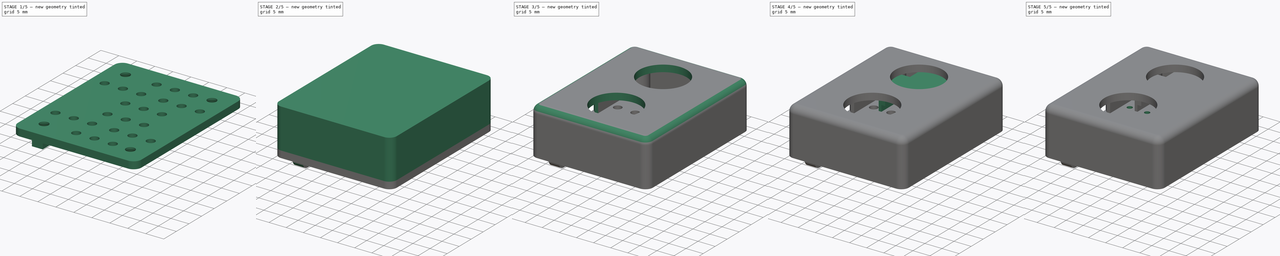
[diagram: build sequence overview — one tinted view per stage of 5, left to right]
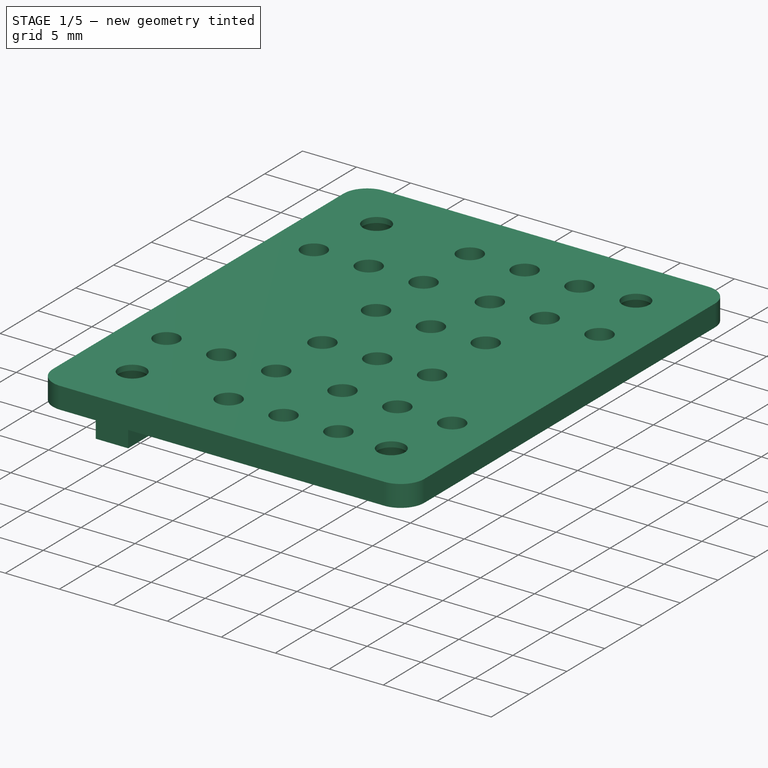
[diagram: stage 1 of 5 — iso view after this stage's code; geometry added in this stage tinted green]
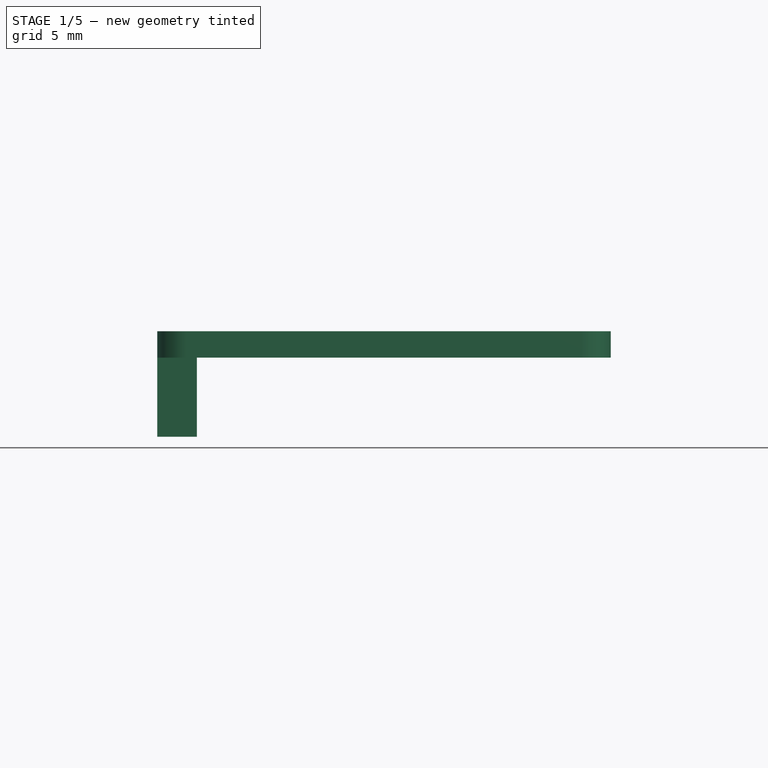
[diagram: stage 1 of 5 — front view after this stage's code; geometry added in this stage tinted green]
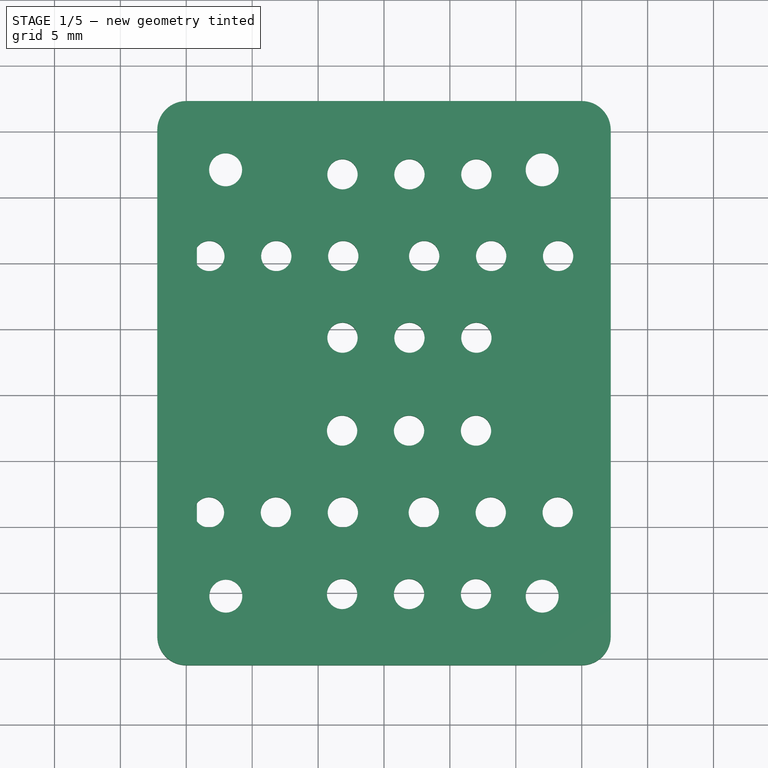
[diagram: stage 1 of 5 — top view after this stage's code; geometry added in this stage tinted green]
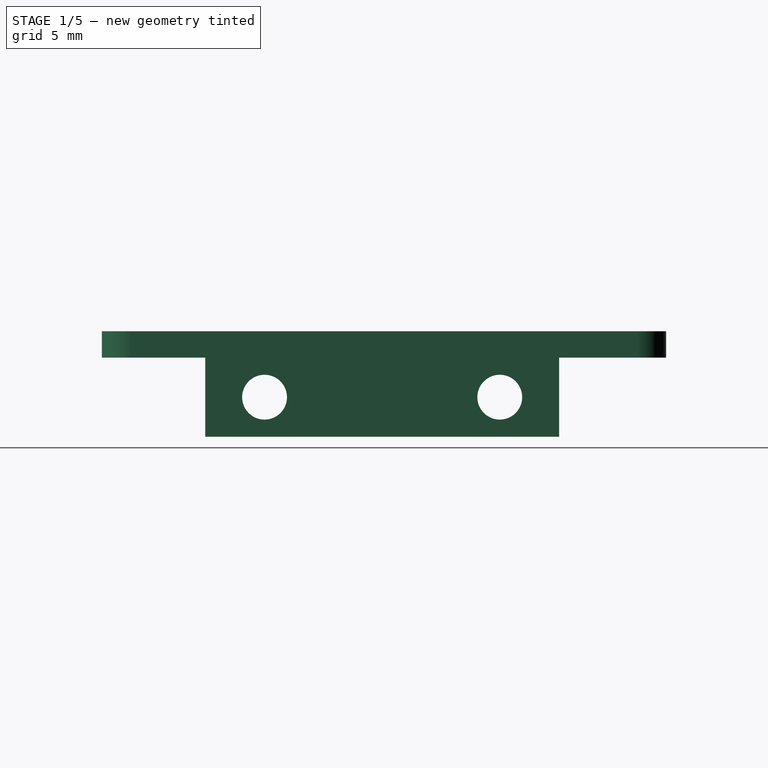
[diagram: stage 1 of 5 — right view after this stage's code; geometry added in this stage tinted green]
FCSTD DOCUMENT  (FreeCAD 1.0RUnknown)
Label: thumb-cluster
License: All rights reserved
LicenseURL: https://en.wikipedia.org/wiki/All_rights_reserved
objects: Part::Feature×25, Sketcher::SketchObject×20, App::Link×20, App::Part×11, PartDesign::Pad×11, PartDesign::Pocket×7, PartDesign::SubShapeBinder×4, PartDesign::Body×4, PartDesign::Thickness×2, PartDesign::Fillet×2, PartDesign::Chamfer×2, PartDesign::CoordinateSystem×1, PartDesign::ShapeBinder×1, PartDesign::Plane×1
note: 148 computed .brp shape members not serialized (recipe doc carries the construction recipe); baked Part::Feature solids carry a one-line shape summary decoded from their .brp
EXTERNAL_REF file=vars.FCStd obj=VarSet
EXTERNAL_REF file=caps.FCStd obj=Body002

FEATURE [PartDesign::Body] Body001  label="top"
  AllowCompound = false
  Group = -> [Pad012,Binder001,Thickness001,Sketch003,Pad002,Sketch004,Pocket001,Sketch005,Pocket002,Fillet,Chamfer001,Sketch022,Sketch023,Pad011,Sketch024]
  Origin = -> Origin013
  Placement = pos=(0,0,-1.6) rot=(0,0,1;0rad)
  Tip = -> Pad011
FEATURE [Sketcher::SketchObject] Sketch025
  ArcFitTolerance = 1e-06
  FullyConstrained = false
  MakeInternals = false
  Placement = pos=(0,0,0) rot=(0,0,-1;3.14159rad)
  sketch-geometry (8):
    g0: LineSegment StartX=-4e-16 StartY=-2.2 StartZ=0 EndX=-30 EndY=-2.2 EndZ=0
    g1: ArcOfCircle CenterX=-30 CenterY=3.6e-15 CenterZ=0 NormalX=0 NormalY=0 NormalZ=1 AngleXU=1.5708 Radius=2.2 StartAngle=1.5708 EndAngle=3.14159
    g2: LineSegment StartX=-32.2 StartY=3.9e-15 StartZ=0 EndX=-32.2 EndY=38.4 EndZ=0
    g3: ArcOfCircle CenterX=-30 CenterY=38.4 CenterZ=0 NormalX=0 NormalY=0 NormalZ=1 AngleXU=-1e-16 Radius=2.2 StartAngle=1.5708 EndAngle=3.14159
    g4: LineSegment StartX=-30 StartY=40.6 StartZ=0 EndX=7.1e-15 EndY=40.6 EndZ=0
    g5: ArcOfCircle CenterX=7.1e-15 CenterY=38.4 CenterZ=0 NormalX=0 NormalY=0 NormalZ=1 AngleXU=-1.5708 Radius=2.2 StartAngle=1.5708 EndAngle=3.14159
    g6: LineSegment StartX=2.2 StartY=38.4 StartZ=0 EndX=2.2 EndY=0 EndZ=0
    g7: ArcOfCircle CenterX=0 CenterY=0 CenterZ=0 NormalX=0 NormalY=0 NormalZ=1 AngleXU=3.14159 Radius=2.2 StartAngle=1.5708 EndAngle=3.14159
  constraints (12):
    c: Horizontal(g0)
    c: Coincident(g0,g1)
    c: Coincident(g1,g2)
    c: Vertical(g2)
    c: Coincident(g2,g3)
    c: Coincident(g3,g4)
    c: Horizontal(g4)
    c: Coincident(g4,g5)
    c: Coincident(g5,g6)
    c: Vertical(g6)
    c: Coincident(g6,g7)
    c: Coincident(g7,g0)
FEATURE [PartDesign::Pad] Pad013
  Direction = (0,0,1)
  Length = 2
  Length2 = 10
  Placement = pos=(0,0,0) rot=(0,0,-1;3.14159rad)
  Profile = -> Sketch025
  ReferenceAxis = -> Sketch025 [N_Axis]
  Refine = true
  Reversed = true
  Suppressed = false
  Type = 0
FEATURE [PartDesign::Pocket] Pocket
  BaseFeature = -> Pad013
  Direction = (0,1e-16,1)
  Length = 2
  Length2 = 5
  Placement = pos=(0,0,0) rot=(0,0,-1;3.14159rad)
  Profile = -> Sketch001
  ReferenceAxis = -> Sketch001 [N_Axis]
  Refine = true
  Suppressed = false
  Type = 1
FEATURE [PartDesign::Chamfer] Chamfer
  Angle = 45
  Base = -> Pocket [Edge49,Edge58,Edge76,Edge66]
  BaseFeature = -> Pocket
  ChamferType = 1
  FlipDirection = false
  Placement = pos=(0,0,0) rot=(0,0,-1;3.14159rad)
  Refine = true
  Size = 0.75
  Size2 = 1.5
  SupportTransform = false
  Suppressed = false
  UseAllEdges = false
FEATURE [PartDesign::Pad] Pad004
  BaseFeature = -> Chamfer
  Direction = (0,-1e-16,-1)
  Length = 6
  Length2 = 10
  Placement = pos=(0,0,0) rot=(0,0,-1;3.14159rad)
  Profile = -> Sketch009
  ReferenceAxis = -> Sketch009 [N_Axis]
  Refine = true
  Suppressed = false
  Type = 0
FEATURE [Sketcher::SketchObject] Sketch010
  ArcFitTolerance = 1e-06
  AttachmentSupport = -> [Pad004]
  ExternalGeometry = -> [Pad004]
  FullyConstrained = true
  MakeInternals = false
  MapMode = 5
  Placement = pos=(0.8,0,0) rot=(0.57735,0.57735,0.57735;2.0944rad)
  sketch-geometry (5):
    g0: LineSegment [constr] StartX=-32.7618 StartY=-5 StartZ=0 EndX=-23.7618 EndY=-5 EndZ=0
    g1: LineSegment [constr] StartX=-14.9172 StartY=-5 StartZ=0 EndX=-5.91721 EndY=-5 EndZ=0
    g2: Circle CenterX=-28.2618 CenterY=-5 CenterZ=0 NormalX=0 NormalY=0 NormalZ=1 AngleXU=0 Radius=1.7
    g3: Circle CenterX=-10.4172 CenterY=-5 CenterZ=0 NormalX=0 NormalY=0 NormalZ=1 AngleXU=0 Radius=1.7
    g4: LineSegment [constr] StartX=-28.2618 StartY=-5 StartZ=0 EndX=-10.4172 EndY=-5 EndZ=0
  constraints (10):
    c: Diameter(g2) = 3.4
    c: Symmetric(g0,g0,g2)
    c: Diameter(g3) = 3.4
    c: Symmetric(g1,g1,g3)
    c: Coincident(g4,g2)
    c: Coincident(g4,g3)
    c: Symmetric(g-4,g-4,g0)
    c: Symmetric(g-3,g-3,g0)
    c: Symmetric(g-5,g-5,g1)
    c: Symmetric(g-6,g-6,g1)
FEATURE [PartDesign::Pocket] Pocket005
  BaseFeature = -> Pad004
  Direction = (-1,0,0)
  Length = 5
  Length2 = 5
  Placement = pos=(0,0,0) rot=(0,0,-1;3.14159rad)
  Profile = -> Sketch010
  ReferenceAxis = -> Sketch010 [N_Axis]
  Refine = true
  Suppressed = false
  Type = 1
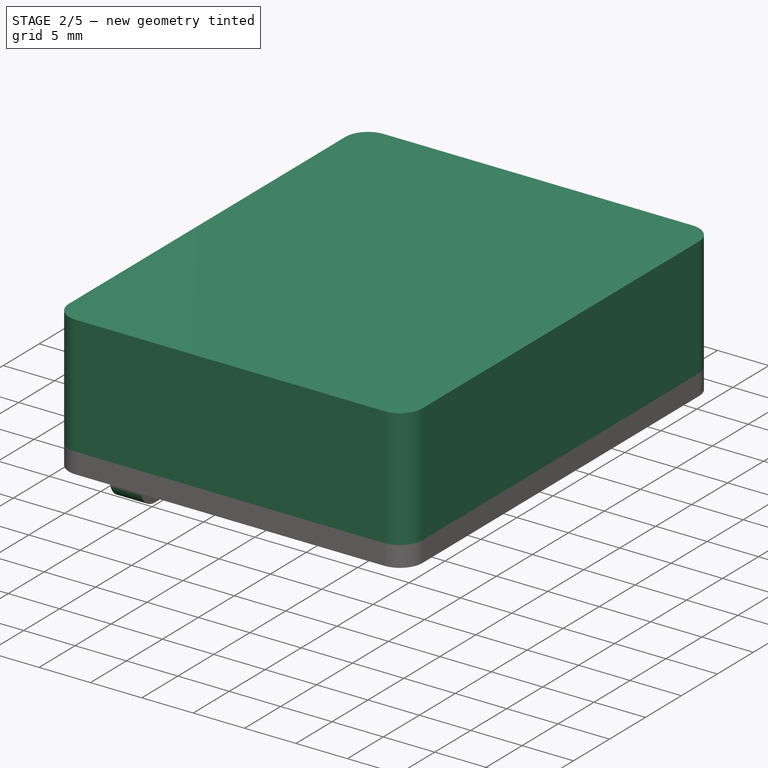
[diagram: stage 2 of 5 — iso view after this stage's code; geometry added in this stage tinted green]
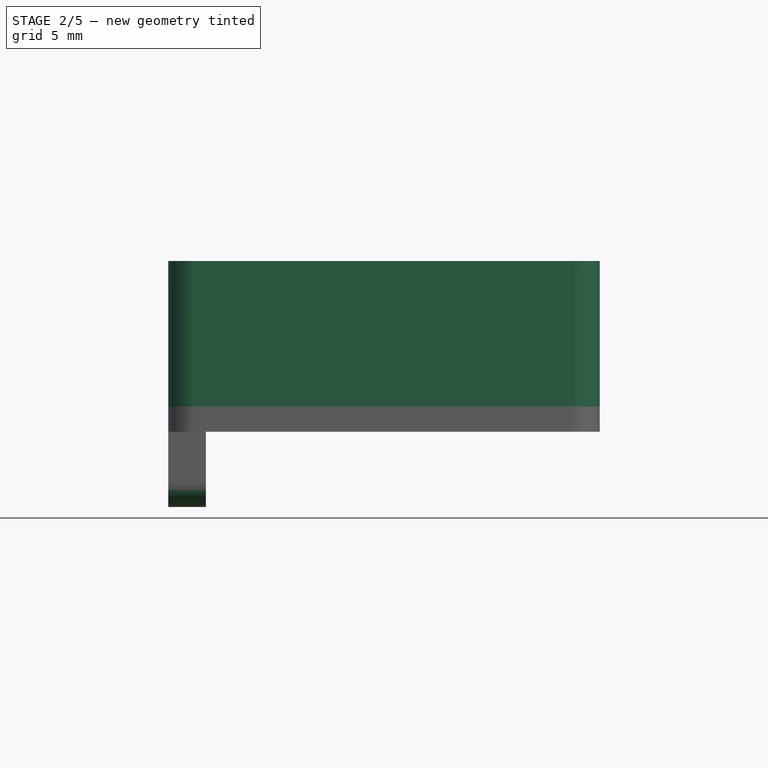
[diagram: stage 2 of 5 — front view after this stage's code; geometry added in this stage tinted green]
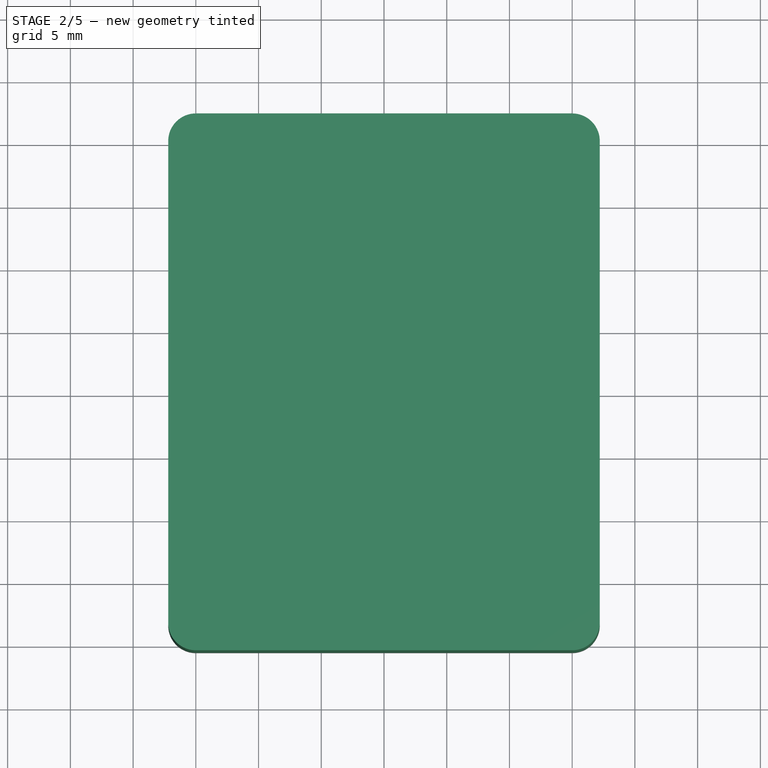
[diagram: stage 2 of 5 — top view after this stage's code; geometry added in this stage tinted green]
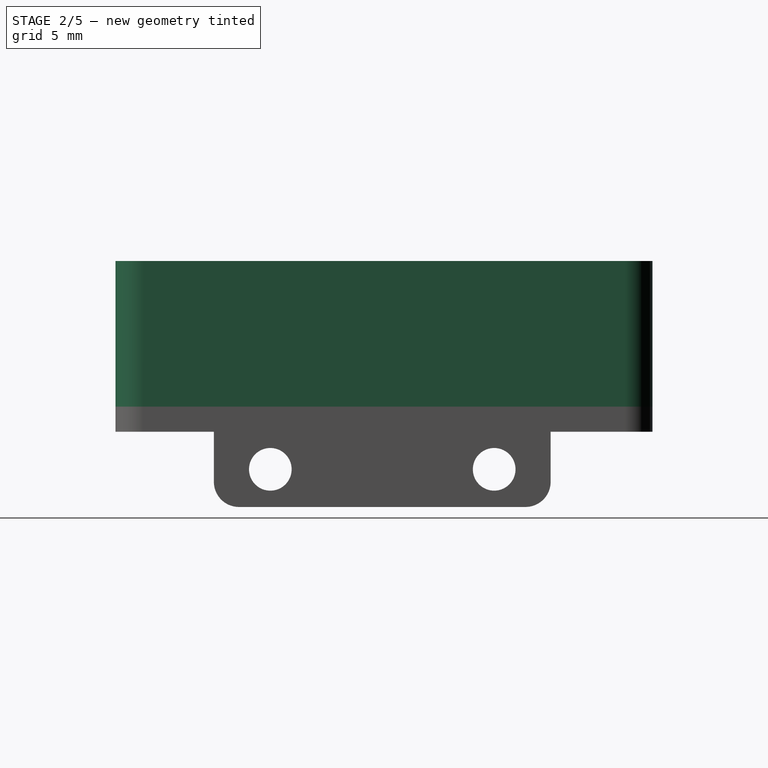
[diagram: stage 2 of 5 — right view after this stage's code; geometry added in this stage tinted green]
FEATURE [PartDesign::Body] Body003  label="switch-aligner"
  AllowCompound = false
  Group = -> [Binder002,DatumPlane,Sketch011,Pad005,Thickness,Sketch012,Pad006,Sketch018,Pocket006,Sketch019,Pad007,Sketch020,Pad008,Sketch021,Binder003,Pad009]
  Origin = -> Origin015
  Tip = -> Pad009
FEATURE [App::Link] Link003  label="base001"
  LinkPlacement = pos=(0,0,0) rot=(1,0,0;3.14159rad)
  LinkedObject = -> Body
  Placement = pos=(0,0,0) rot=(1,0,0;3.14159rad)
FEATURE [App::Link] Link004  label="top-stick001"
  LinkPlacement = pos=(0,0,0) rot=(1,0,0;3.14159rad)
  LinkedObject = -> Part001
  Placement = pos=(0,0,0) rot=(1,0,0;3.14159rad)
FEATURE [App::Part] Part002  label="base-print"
  Group = -> [Link003]
  Origin = -> Origin016
FEATURE [App::Part] Part003  label="top-stick-print"
  Group = -> [Link004]
  Origin = -> Origin017
FEATURE [App::Link] Link005  label="switch-aligner001"
  LinkPlacement = pos=(0,0,0) rot=(0,1,0;3.14159rad)
  LinkedObject = -> Body003
  Placement = pos=(0,0,0) rot=(0,1,0;3.14159rad)
FEATURE [App::Part] Part004  label="switch-aligner-print"
  Group = -> [Link005]
  Origin = -> Origin018
FEATURE [Sketcher::SketchObject] Sketch023
  ArcFitTolerance = 1e-06
  FullyConstrained = false
  MakeInternals = false
  Placement = pos=(0,0,0) rot=(0,0,-1;3.14159rad)
  sketch-geometry (8):
    g0: LineSegment StartX=-4e-16 StartY=-2.1 StartZ=0 EndX=-30 EndY=-2.1 EndZ=0
    g1: ArcOfCircle CenterX=-30 CenterY=3.6e-15 CenterZ=0 NormalX=0 NormalY=0 NormalZ=1 AngleXU=1.5708 Radius=2.1 StartAngle=1.5708 EndAngle=3.14159
    g2: LineSegment StartX=-32.1 StartY=4.1e-15 StartZ=0 EndX=-32.1 EndY=38.4 EndZ=0
    g3: ArcOfCircle CenterX=-30 CenterY=38.4 CenterZ=0 NormalX=0 NormalY=0 NormalZ=1 AngleXU=-1e-16 Radius=2.1 StartAngle=1.5708 EndAngle=3.14159
    g4: LineSegment StartX=-30 StartY=40.5 StartZ=0 EndX=3.6e-15 EndY=40.5 EndZ=0
    g5: ArcOfCircle CenterX=7.1e-15 CenterY=38.4 CenterZ=0 NormalX=0 NormalY=0 NormalZ=1 AngleXU=-1.5708 Radius=2.1 StartAngle=1.5708 EndAngle=3.14159
    g6: LineSegment StartX=2.1 StartY=38.4 StartZ=0 EndX=2.1 EndY=0 EndZ=0
    g7: ArcOfCircle CenterX=0 CenterY=0 CenterZ=0 NormalX=0 NormalY=0 NormalZ=1 AngleXU=3.14159 Radius=2.1 StartAngle=1.5708 EndAngle=3.14159
  constraints (12):
    c: Horizontal(g0)
    c: Coincident(g0,g1)
    c: Coincident(g1,g2)
    c: Vertical(g2)
    c: Coincident(g2,g3)
    c: Coincident(g3,g4)
    c: Horizontal(g4)
    c: Coincident(g4,g5)
    c: Coincident(g5,g6)
    c: Vertical(g6)
    c: Coincident(g6,g7)
    c: Coincident(g7,g0)
FEATURE [Sketcher::SketchObject] Sketch024
  ArcFitTolerance = 1e-06
  FullyConstrained = false
  MakeInternals = false
  Placement = pos=(0,0,0) rot=(0,0,-1;3.14159rad)
  sketch-geometry (8):
    g0: LineSegment StartX=-4e-16 StartY=-2.2 StartZ=0 EndX=-30 EndY=-2.2 EndZ=0
    g1: ArcOfCircle CenterX=-30 CenterY=3.6e-15 CenterZ=0 NormalX=0 NormalY=0 NormalZ=1 AngleXU=1.5708 Radius=2.2 StartAngle=1.5708 EndAngle=3.14159
    g2: LineSegment StartX=-32.2 StartY=4.1e-15 StartZ=0 EndX=-32.2 EndY=38.4 EndZ=0
    g3: ArcOfCircle CenterX=-30 CenterY=38.4 CenterZ=0 NormalX=0 NormalY=0 NormalZ=1 AngleXU=-1e-16 Radius=2.2 StartAngle=1.5708 EndAngle=3.14159
    g4: LineSegment StartX=-30 StartY=40.6 StartZ=0 EndX=3.6e-15 EndY=40.6 EndZ=0
    g5: ArcOfCircle CenterX=7.1e-15 CenterY=38.4 CenterZ=0 NormalX=0 NormalY=0 NormalZ=1 AngleXU=-1.5708 Radius=2.2 StartAngle=1.5708 EndAngle=3.14159
    g6: LineSegment StartX=2.2 StartY=38.4 StartZ=0 EndX=2.2 EndY=0 EndZ=0
    g7: ArcOfCircle CenterX=0 CenterY=0 CenterZ=0 NormalX=0 NormalY=0 NormalZ=1 AngleXU=3.14159 Radius=2.2 StartAngle=1.5708 EndAngle=3.14159
  constraints (12):
    c: Horizontal(g0)
    c: Coincident(g0,g1)
    c: Coincident(g1,g2)
    c: Vertical(g2)
    c: Coincident(g2,g3)
    c: Coincident(g3,g4)
    c: Horizontal(g4)
    c: Coincident(g4,g5)
    c: Coincident(g5,g6)
    c: Vertical(g6)
    c: Coincident(g6,g7)
    c: Coincident(g7,g0)
FEATURE [PartDesign::Pad] Pad012
  Direction = (0,0,1)
  Length = 11.603
  Length2 = 10
  Placement = pos=(0,0,0) rot=(0,0,-1;3.14159rad)
  Profile = -> Sketch024
  ReferenceAxis = -> Sketch024 [N_Axis]
  Refine = true
  Suppressed = false
  Type = 0
  expr: Length = <<vars>>#VarSet.Base_recess_height + <<vars>>#VarSet.pcb_thickness
FEATURE [PartDesign::Thickness] Thickness001
  Base = -> Pad012 [Face9]
  BaseFeature = -> Pad012
  Intersection = false
  Join = 0
  Mode = 0
  Refine = true
  Reversed = true
  SupportTransform = false
  Suppressed = false
  Value = 2
FEATURE [Sketcher::SketchObject] Sketch003
  ArcFitTolerance = 1e-06
  AttacherType = Attacher::AttachEngine3D
  AttachmentSupport = -> [Thickness001]
  ExternalGeometry = -> [Binder001]
  FullyConstrained = true
  MakeInternals = false
  MapMode = 5
  Placement = pos=(0,0,9.603) rot=(1,0,0;3.14159rad)
  sketch-geometry (8):
    g0: Circle CenterX=3 CenterY=35.3667 CenterZ=0 NormalX=0 NormalY=0 NormalZ=1 AngleXU=0 Radius=1.7
    g1: Circle CenterX=27 CenterY=35.3667 CenterZ=0 NormalX=0 NormalY=0 NormalZ=1 AngleXU=0 Radius=1.7
    g2: Circle CenterX=27 CenterY=3.01673 CenterZ=0 NormalX=0 NormalY=0 NormalZ=1 AngleXU=0 Radius=1.7
    g3: Circle CenterX=2.98327 CenterY=3.01673 CenterZ=0 NormalX=0 NormalY=0 NormalZ=1 AngleXU=0 Radius=1.7
    g4: Circle CenterX=3 CenterY=35.3667 CenterZ=0 NormalX=0 NormalY=0 NormalZ=1 AngleXU=0 Radius=3
    g5: Circle CenterX=27 CenterY=35.3667 CenterZ=0 NormalX=0 NormalY=0 NormalZ=1 AngleXU=0 Radius=3
    g6: Circle CenterX=27 CenterY=3.01673 CenterZ=0 NormalX=0 NormalY=0 NormalZ=1 AngleXU=0 Radius=3
    g7: Circle CenterX=2.98327 CenterY=3.01673 CenterZ=0 NormalX=0 NormalY=0 NormalZ=1 AngleXU=0 Radius=3
  constraints (16):
    c: Coincident(g0,g-3)
    c: Coincident(g1,g-4)
    c: Coincident(g2,g-5)
    c: Coincident(g3,g-6)
    c: Diameter(g0) = 3.4
    c: Equal(g0,g1)
    c: Equal(g1,g2)
    c: Equal(g2,g3)
    c: Diameter(g4) = 6
    c: Coincident(g4,g0)
    c: Diameter(g5) = 6
    c: Coincident(g5,g1)
    c: Diameter(g6) = 6
    c: Coincident(g6,g2)
    c: Diameter(g7) = 6
    c: Coincident(g7,g3)
FEATURE [PartDesign::Pad] Pad002
  BaseFeature = -> Thickness001
  Direction = (0,0,-1)
  Length = 8.003
  Length2 = 10
  Profile = -> Sketch003
  ReferenceAxis = -> Sketch003 [N_Axis]
  Refine = true
  Suppressed = false
  Type = 0
  expr: Length = <<vars>>#VarSet.Base_recess_height - <<vars>>#VarSet.wall_thickness
FEATURE [Sketcher::SketchObject] Sketch
  ArcFitTolerance = 1e-06
  AttachmentSupport = -> [Pocket005]
  ExternalGeometry = -> [Pocket005]
  FullyConstrained = false
  MakeInternals = false
  MapMode = 5
  Placement = pos=(0,0,0) rot=(0,0,1;3.14159rad)
  sketch-geometry (4):
    g0: LineSegment StartX=2.2 StartY=16.8359 StartZ=0 EndX=2.2 EndY=21.8359 EndZ=0
    g1: LineSegment StartX=2.2 StartY=21.8359 StartZ=0 EndX=0.7 EndY=21.8359 EndZ=0
    g2: LineSegment StartX=0.7 StartY=21.8359 StartZ=0 EndX=0.7 EndY=16.8359 EndZ=0
    g3: LineSegment StartX=0.7 StartY=16.8359 StartZ=0 EndX=2.2 EndY=16.8359 EndZ=0
  constraints (11):
    c: Coincident(g0,g1)
    c: Coincident(g1,g2)
    c: Coincident(g2,g3)
    c: Coincident(g3,g0)
    c: Vertical(g0)
    c: Vertical(g2)
    c: Horizontal(g1)
    c: Horizontal(g3)
    c: Distance(g0,g2) = 1.5
    c: Distance(g1,g3) = 5
    c: PointOnObject(g0,g-3)
FEATURE [PartDesign::Pocket] Pocket007
  BaseFeature = -> Pocket005
  Direction = (0,0,-1)
  Length = 5
  Length2 = 5
  Placement = pos=(0,0,0) rot=(0,0,-1;3.14159rad)
  Profile = -> Sketch
  ReferenceAxis = -> Sketch [N_Axis]
  Refine = true
  Suppressed = false
  Type = 1
FEATURE [PartDesign::Fillet] Fillet001
  Base = -> Pocket007 [Edge78,Edge64]
  BaseFeature = -> Pocket007
  Placement = pos=(0,0,0) rot=(0,0,-1;3.14159rad)
  Radius = 2
  Refine = true
  SupportTransform = false
  Suppressed = false
  UseAllEdges = false
FEATURE [PartDesign::Body] Body  label="base"
  AllowCompound = false
  Group = -> [Pad013,Sketch001,Binder,Pocket,Chamfer,Sketch009,Pad004,Sketch010,Pocket005,Sketch025,Sketch,Pocket007,Fillet001]
  Origin = -> Origin011
  Placement = pos=(0,0,-1.6) rot=(0,0,1;0rad)
  Tip = -> Fillet001
FEATURE [App::Part] Part  label="case"
  Group = -> [Body,Part001,Body001,Part002,Part003]
  Origin = -> Origin010

RESOLVED EXTERNAL PARTS (link-assembly join: the EXTERNAL_REF files above that resolve inside this repo's crawl, each included once):
---- part caps.FCStd = doc fcstd_7bd26f6c3365 (52286 chars; too large to inline — full recipe in that document) ----
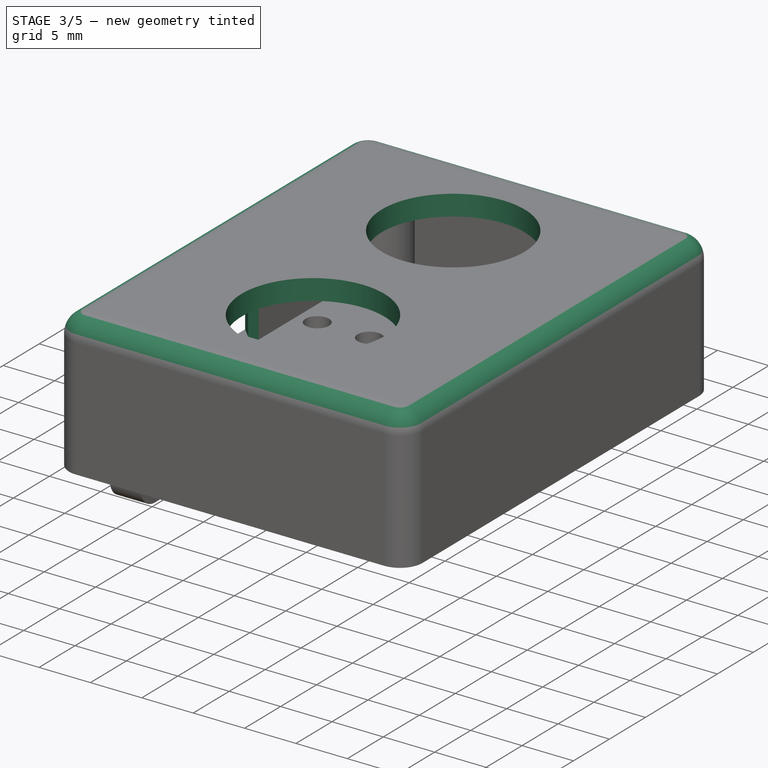
[diagram: stage 3 of 5 — iso view after this stage's code; geometry added in this stage tinted green]
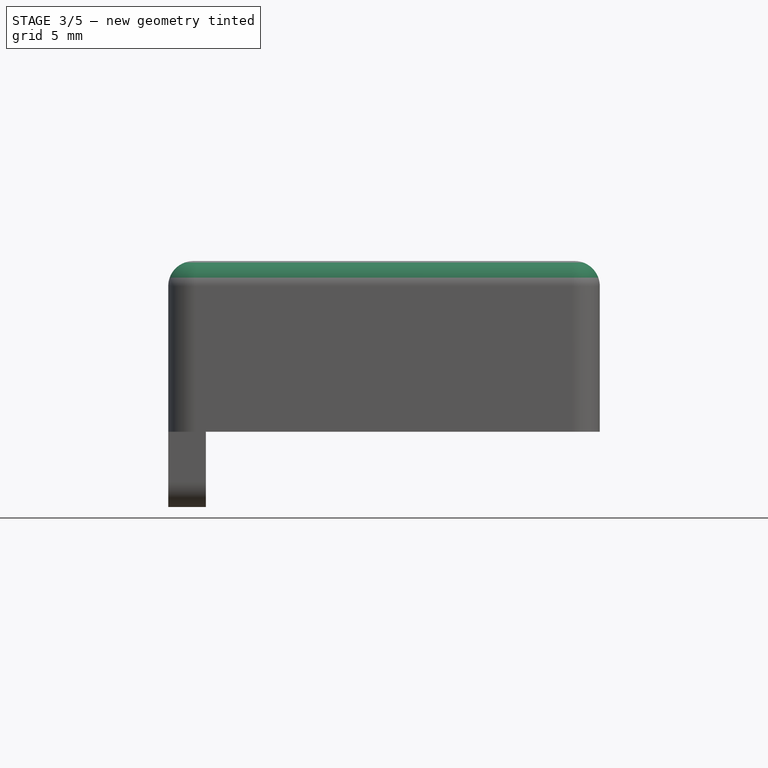
[diagram: stage 3 of 5 — front view after this stage's code; geometry added in this stage tinted green]
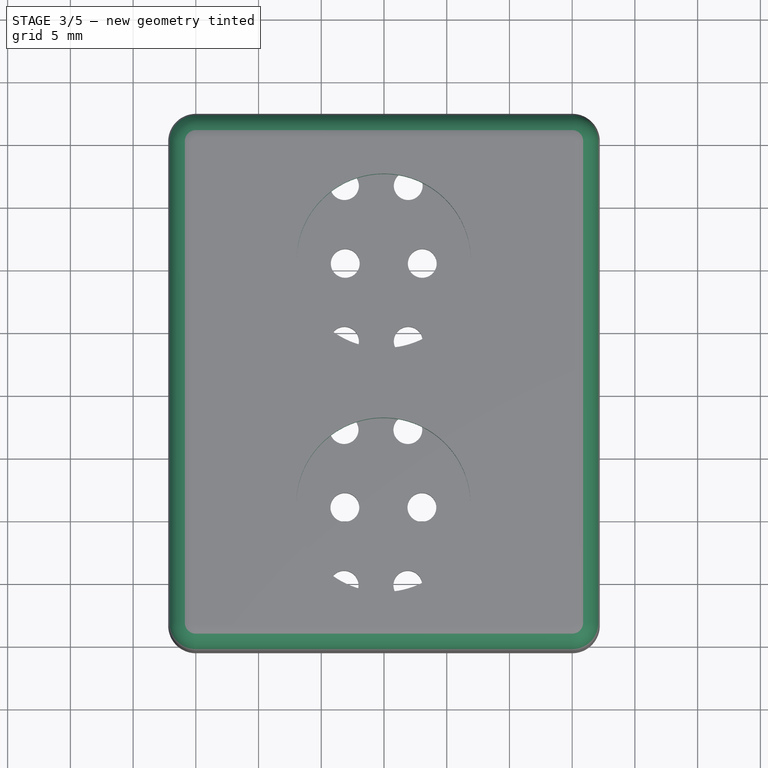
[diagram: stage 3 of 5 — top view after this stage's code; geometry added in this stage tinted green]
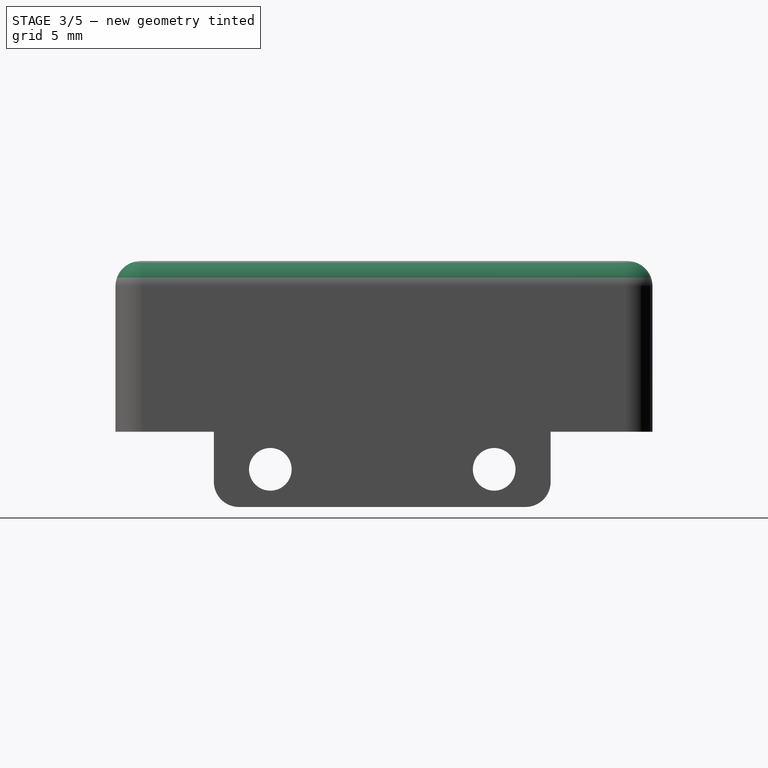
[diagram: stage 3 of 5 — right view after this stage's code; geometry added in this stage tinted green]
FEATURE [Sketcher::SketchObject] Sketch004
  ArcFitTolerance = 1e-06
  AttacherType = Attacher::AttachEngine3D
  AttachmentSupport = -> [Pad002]
  ExternalGeometry = -> [Binder001]
  FullyConstrained = true
  MakeInternals = false
  MapMode = 5
  Placement = pos=(0,0,11.603) rot=(0,0,1;0rad)
  sketch-geometry (4):
    g0: Circle CenterX=14.98 CenterY=-9.55 CenterZ=0 NormalX=0 NormalY=0 NormalZ=1 AngleXU=0 Radius=6.95
    g1: Circle CenterX=14.95 CenterY=-29 CenterZ=0 NormalX=0 NormalY=0 NormalZ=1 AngleXU=0 Radius=6.95
    g2: GeomPoint X=14.98 Y=-9.55 Z=0
    g3: GeomPoint X=14.95 Y=-29 Z=0
  constraints (6):
    c: Diameter(g0) = 13.9
    c: Coincident(g0,g-3)
    c: Coincident(g1,g-4)
    c: Coincident(g2,g0)
    c: Coincident(g3,g1)
    c: Equal(g1,g0)
FEATURE [PartDesign::Pocket] Pocket001
  BaseFeature = -> Pad002
  Direction = (0,0,-1)
  Length = 5
  Length2 = 5
  Profile = -> Sketch004
  ReferenceAxis = -> Sketch004 [N_Axis]
  Refine = true
  Suppressed = false
  Type = 0
FEATURE [Sketcher::SketchObject] Sketch005
  ArcFitTolerance = 1e-06
  AttacherType = Attacher::AttachEngine3D
  AttachmentSupport = -> [Pocket001]
  FullyConstrained = false
  MakeInternals = false
  MapMode = 5
  Placement = pos=(-2.2,0,0) rot=(0.57735,-0.57735,-0.57735;2.0944rad)
  sketch-geometry (8):
    g0: LineSegment StartX=14.9395 StartY=0 StartZ=0 EndX=23.7488 EndY=0 EndZ=0
    g1: LineSegment StartX=23.7488 StartY=0 StartZ=0 EndX=23.7488 EndY=3.27657 EndZ=0
    g2: LineSegment StartX=22.6841 StartY=4.34131 StartZ=0 EndX=16.0197 EndY=4.34131 EndZ=0
    g3: LineSegment StartX=14.9395 StartY=3.26112 StartZ=0 EndX=14.9395 EndY=0 EndZ=0
    g4: ArcOfCircle CenterX=16.0197 CenterY=3.26112 CenterZ=0 NormalX=0 NormalY=0 NormalZ=1 AngleXU=0 Radius=1.08019 StartAngle=1.5708 EndAngle=3.14159
    g5: GeomPoint [constr] X=14.9395 Y=4.34131 Z=0
    g6: ArcOfCircle CenterX=22.6841 CenterY=3.27657 CenterZ=0 NormalX=0 NormalY=0 NormalZ=1 AngleXU=0 Radius=1.06474 StartAngle=0 EndAngle=1.5708
    g7: GeomPoint [constr] X=23.7488 Y=4.34131 Z=0
  constraints (15):
    c: Coincident(g0,g1)
    c: Coincident(g3,g0)
    c: Horizontal(g0)
    c: Horizontal(g2)
    c: Vertical(g1)
    c: Vertical(g3)
    c: PointOnObject(g0,g-1)
    c: PointOnObject(g5,g2)
    c: PointOnObject(g5,g3)
    c: Tangent(g2,g4) = -1.5708
    c: Tangent(g3,g4) = -1.5708
    c: PointOnObject(g7,g1)
    c: PointOnObject(g7,g2)
    c: Tangent(g1,g6) = -1.5708
    c: Tangent(g2,g6) = -1.5708
FEATURE [PartDesign::Pocket] Pocket002
  BaseFeature = -> Pocket001
  Direction = (1,0,0)
  Length = 2
  Length2 = 5
  Profile = -> Sketch005
  ReferenceAxis = -> Sketch005 [N_Axis]
  Refine = true
  Suppressed = false
  Type = 0
FEATURE [PartDesign::Fillet] Fillet
  Base = -> Pocket002 [Edge28]
  BaseFeature = -> Pocket002
  Radius = 2
  Refine = true
  SupportTransform = false
  Suppressed = false
  UseAllEdges = false
FEATURE [PartDesign::Chamfer] Chamfer001
  Angle = 45
  Base = -> Fillet [Edge38]
  BaseFeature = -> Fillet
  ChamferType = 0
  FlipDirection = false
  Refine = true
  Size = 1
  Size2 = 1
  SupportTransform = false
  Suppressed = false
  UseAllEdges = false
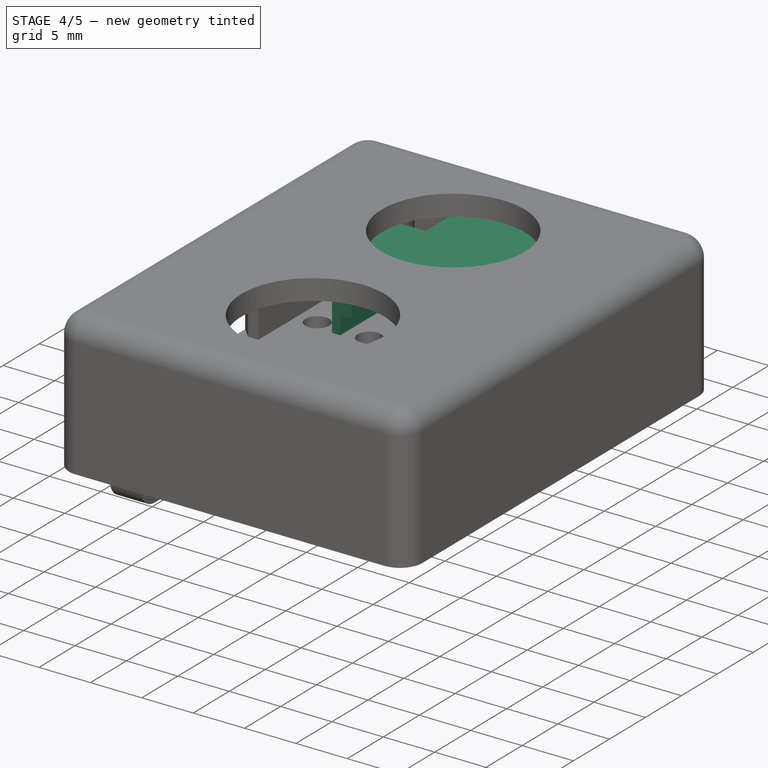
[diagram: stage 4 of 5 — iso view after this stage's code; geometry added in this stage tinted green]
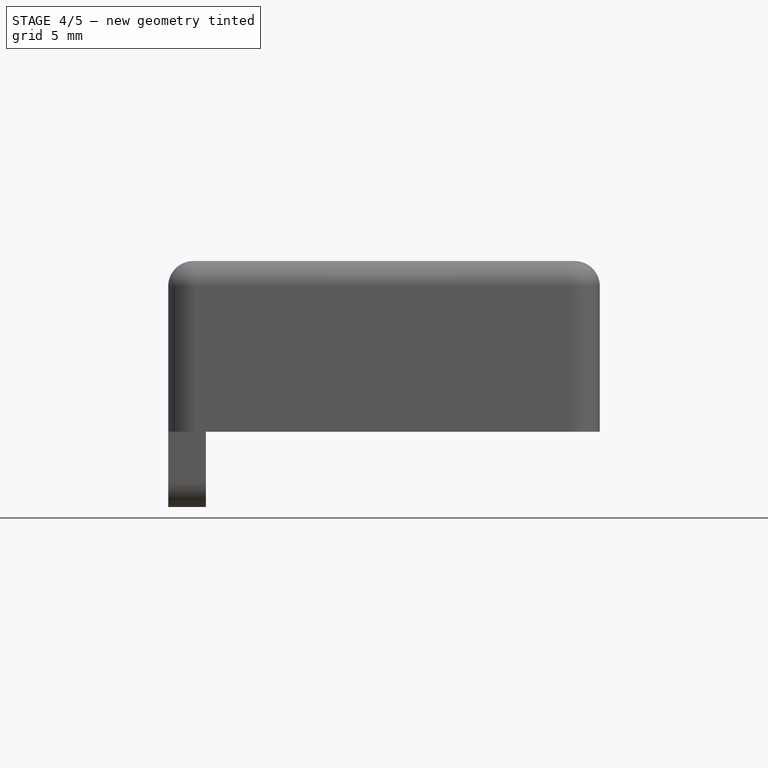
[diagram: stage 4 of 5 — front view after this stage's code; geometry added in this stage tinted green]
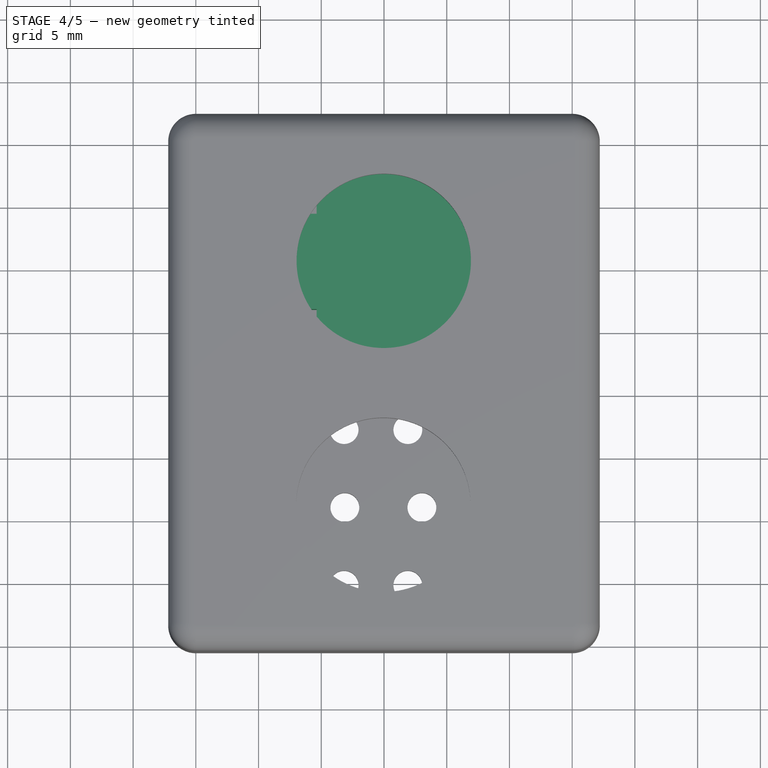
[diagram: stage 4 of 5 — top view after this stage's code; geometry added in this stage tinted green]
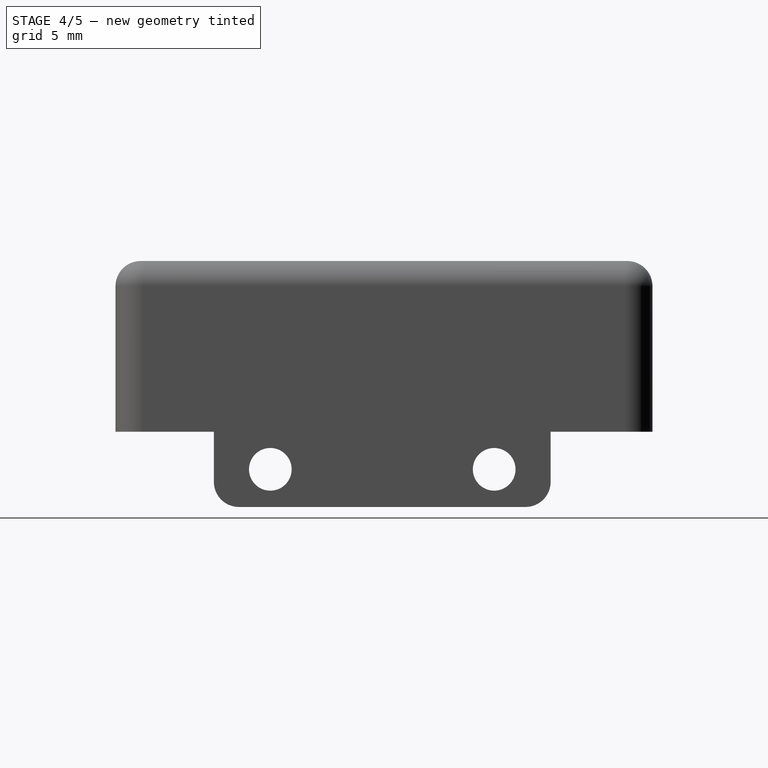
[diagram: stage 4 of 5 — right view after this stage's code; geometry added in this stage tinted green]
FEATURE [PartDesign::Body] Body002  label="test-base"
  AllowCompound = false
  Group = -> [CopyPcb_58ce,Sketch006,Pad003,Sketch007,Pocket003]
  Origin = -> Origin014
  Tip = -> Pocket003
FEATURE [PartDesign::SubShapeBinder] Binder001
  BindCopyOnChange = 0
  BindMode = 0
  ClaimChildren = false
  Context = -> Part [Part001.Body001.Binder001.]
  Fuse = false
  MakeFace = true
  OffsetFill = false
  OffsetIntersection = false
  OffsetJoinType = 0
  OffsetOpenResult = false
  PartialLoad = false
  Refine = true
  Relative = true
  Support = -> [Board_58ce[Board_Geoms_58ce.Pcb_58ce.Face68]]
  _Version = 2
FEATURE [App::Link] Link002  label="Body001"
  LinkPlacement = pos=(0,0,-1.6) rot=(0,0,1;0rad)
  LinkedObject = -> Body001
  Placement = pos=(0,0,-1.6) rot=(0,0,1;0rad)
FEATURE [App::Part] Part001  label="top-stick"
  Group = -> [Link,Link001,Link002]
  Origin = -> Origin012
FEATURE [Sketcher::SketchObject] Sketch009
  ArcFitTolerance = 1e-06
  AttacherType = Attacher::AttachEngine3D
  FullyConstrained = false
  MakeInternals = false
  MapMode = 5
  Placement = pos=(0,0,-2) rot=(1,0,0;3.14159rad)
  sketch-geometry (4):
    g0: LineSegment StartX=-2.2 StartY=5.91721 StartZ=0 EndX=0.8 EndY=5.91721 EndZ=0
    g1: LineSegment StartX=0.8 StartY=32.7618 StartZ=0 EndX=-2.2 EndY=32.7618 EndZ=0
    g2: LineSegment StartX=0.8 StartY=32.7618 StartZ=0 EndX=0.8 EndY=5.91721 EndZ=0
    g3: LineSegment StartX=-2.2 StartY=5.91721 StartZ=0 EndX=-2.2 EndY=32.7618 EndZ=0
  constraints (10):
    c: Horizontal(g0)
    c: Horizontal(g1)
    c: Coincident(g2,g1)
    c: Coincident(g2,g0)
    c: Vertical(g2)
    c: PointOnObject(g0,g-3)
    c: Coincident(g3,g0)
    c: Coincident(g3,g1)
    c: Vertical(g3)
    c: DistanceX(g0,g0) = 3
FEATURE [PartDesign::SubShapeBinder] Binder002
  BindCopyOnChange = 0
  BindMode = 0
  ClaimChildren = false
  Context = -> Body003 [Binder002.]
  Fuse = false
  MakeFace = true
  OffsetFill = false
  OffsetIntersection = false
  OffsetJoinType = 0
  OffsetOpenResult = false
  PartialLoad = false
  Refine = true
  Relative = true
  Support = -> [Board_58ce[Step_Models_58ce.Top_58ce.SW2_D2FC_F_7N_60M_8f2af3d61e4a_ln_006.Part__Feature021.Face59,Step_Models_58ce.Top_58ce.SW2_D2FC_F_7N_60M_8f2af3d61e4a_ln_003.Part__Feature021.Face59,Step_Models_58ce.Top_58ce.SW2_D2FC_F_7N_60M_8f2af3d61e4a_ln_005.Part__Feature021.Face59,Step_Models_58ce.Top_58ce.SW2_D2FC_F_7N_60M_8f2af3d61e4a_ln_004.Part__Feature021.Face59,Board_Geoms_58ce.Pcb_58ce.Edge152]]
  _Version = 2
FEATURE [PartDesign::Plane] DatumPlane
  AttachmentOffset = pos=(0,0,2.2) rot=(0,0,1;0rad)
  AttachmentSupport = -> [Binder002]
  Length = 60
  MapMode = 5
  Placement = pos=(-9e-16,0,8.69) rot=(0,0,1;0rad)
  ResizeMode = 0
  Width = 60
FEATURE [Sketcher::SketchObject] Sketch011
  ArcFitTolerance = 1e-06
  AttachmentSupport = -> [DatumPlane]
  ExternalGeometry = -> [Binder002]
  FullyConstrained = true
  MakeInternals = false
  MapMode = 5
  Placement = pos=(-9e-16,0,8.69) rot=(0,0,1;0rad)
  sketch-geometry (12):
    g0: LineSegment StartX=9.63 StartY=-5.75 StartZ=0 EndX=9.63 EndY=0.45 EndZ=0
    g1: LineSegment StartX=9.63 StartY=0.45 StartZ=0 EndX=24.23 EndY=0.45 EndZ=0
    g2: LineSegment StartX=24.23 StartY=0.45 StartZ=0 EndX=24.23 EndY=-5.75 EndZ=0
    g3: LineSegment StartX=24.23 StartY=-5.75 StartZ=0 EndX=30.43 EndY=-5.75 EndZ=0
    g4: LineSegment StartX=30.43 StartY=-5.75 StartZ=0 EndX=30.43 EndY=-13.35 EndZ=0
    g5: LineSegment StartX=30.43 StartY=-13.35 StartZ=0 EndX=24.23 EndY=-13.35 EndZ=0
    g6: LineSegment StartX=24.23 StartY=-13.35 StartZ=0 EndX=24.23 EndY=-19.55 EndZ=0
    g7: LineSegment StartX=24.23 StartY=-19.55 StartZ=0 EndX=9.63 EndY=-19.55 EndZ=0
    g8: LineSegment StartX=9.63 StartY=-19.55 StartZ=0 EndX=9.63 EndY=-13.35 EndZ=0
    g9: LineSegment StartX=9.63 StartY=-13.35 StartZ=0 EndX=-0.47 EndY=-13.35 EndZ=0
    g10: LineSegment StartX=-0.47 StartY=-13.35 StartZ=0 EndX=-0.47 EndY=-5.75 EndZ=0
    g11: LineSegment StartX=-0.47 StartY=-5.75 StartZ=0 EndX=9.63 EndY=-5.75 EndZ=0
  constraints (36):
    c: Vertical(g0)
    c: Coincident(g0,g1)
    c: Horizontal(g1)
    c: Coincident(g1,g2)
    c: Vertical(g2)
    c: Coincident(g2,g3)
    c: Horizontal(g3)
    c: Coincident(g3,g4)
    c: Vertical(g4)
    c: Coincident(g4,g5)
    c: Horizontal(g5)
    c: Coincident(g5,g6)
    c: Vertical(g6)
    c: Coincident(g6,g7)
    c: Horizontal(g7)
    c: Coincident(g7,g8)
    c: Vertical(g8)
    c: Coincident(g8,g9)
    c: Horizontal(g9)
    c: Coincident(g9,g10)
    c: Vertical(g10)
    c: Coincident(g10,g11)
    c: Coincident(g11,g0)
    c: Horizontal(g11)
    c: Distance(g-4,g0) = 0.9
    c: Distance(g-4,g1) = 0.9
    c: Distance(g-4,g2) = 0.9
    c: Distance(g-10,g3) = 0.9
    c: Distance(g-10,g4) = 0.9
    c: Distance(g-9,g5) = 0.9
    c: Distance(g-8,g6) = 0.9
    c: Distance(g-8,g7) = 0.9
    c: Distance(g-8,g8) = 0.9
    c: Distance(g9,g-6) = 0.9
    c: Distance(g-5,g10) = 0.9
    c: Distance(g11,g-5) = 0.9
FEATURE [PartDesign::Pad] Pad005
  Direction = (0,0,1)
  Length = 4
  Length2 = 10
  Placement = pos=(-9e-16,1.4e-15,8.69) rot=(0,0,1;0rad)
  Profile = -> Sketch011
  ReferenceAxis = -> Sketch011 [N_Axis]
  Refine = true
  Reversed = true
  Suppressed = false
  Type = 0
FEATURE [PartDesign::Thickness] Thickness
  Base = -> Pad005 [Face14]
  BaseFeature = -> Pad005
  Intersection = false
  Join = 0
  Mode = 0
  Refine = true
  Reversed = true
  SupportTransform = false
  Suppressed = false
  Value = 0.8
FEATURE [Sketcher::SketchObject] Sketch012
  ArcFitTolerance = 1e-06
  AttachmentSupport = -> [Thickness]
  ExternalGeometry = -> [Thickness,Binder002]
  FullyConstrained = true
  MakeInternals = false
  MapMode = 5
  Placement = pos=(0,0,7.89) rot=(1,0,0;3.14159rad)
  sketch-geometry (24):
    g0: LineSegment StartX=9.63 StartY=-0.45 StartZ=0 EndX=11.53 EndY=-0.45 EndZ=0
    g1: LineSegment StartX=11.53 StartY=-0.45 StartZ=0 EndX=11.53 EndY=6.25 EndZ=0
    g2: LineSegment StartX=11.53 StartY=6.25 StartZ=0 EndX=9.63 EndY=6.25 EndZ=0
    g3: LineSegment StartX=9.63 StartY=6.25 StartZ=0 EndX=9.63 EndY=-0.45 EndZ=0
    g4: LineSegment StartX=24.23 StartY=-0.45 StartZ=0 EndX=24.23 EndY=6.25 EndZ=0
    g5: LineSegment StartX=24.23 StartY=6.25 StartZ=0 EndX=22.33 EndY=6.25 EndZ=0
    g6: LineSegment StartX=22.33 StartY=6.25 StartZ=0 EndX=22.33 EndY=-0.45 EndZ=0
    g7: LineSegment StartX=22.33 StartY=-0.45 StartZ=0 EndX=24.23 EndY=-0.45 EndZ=0
    g8: LineSegment StartX=30.43 StartY=13.35 StartZ=0 EndX=28.53 EndY=13.35 EndZ=0
    g9: LineSegment StartX=28.53 StartY=13.35 StartZ=0 EndX=28.53 EndY=5.75 EndZ=0
    g10: LineSegment StartX=28.53 StartY=5.75 StartZ=0 EndX=30.43 EndY=5.75 EndZ=0
    g11: LineSegment StartX=30.43 StartY=5.75 StartZ=0 EndX=30.43 EndY=13.35 EndZ=0
    g12: LineSegment StartX=-0.47 StartY=5.75 StartZ=0 EndX=1.43 EndY=5.75 EndZ=0
    g13: LineSegment StartX=1.43 StartY=5.75 StartZ=0 EndX=1.43 EndY=13.35 EndZ=0
    g14: LineSegment StartX=1.43 StartY=13.35 StartZ=0 EndX=-0.47 EndY=13.35 EndZ=0
    g15: LineSegment StartX=-0.47 StartY=13.35 StartZ=0 EndX=-0.47 EndY=5.75 EndZ=0
    g16: LineSegment StartX=9.63 StartY=19.55 StartZ=0 EndX=9.63 EndY=12.85 EndZ=0
    g17: LineSegment StartX=9.63 StartY=12.85 StartZ=0 EndX=11.53 EndY=12.85 EndZ=0
    g18: LineSegment StartX=11.53 StartY=12.85 StartZ=0 EndX=11.53 EndY=19.55 EndZ=0
    g19: LineSegment StartX=11.53 StartY=19.55 StartZ=0 EndX=9.63 EndY=19.55 EndZ=0
    g20: LineSegment StartX=24.23 StartY=19.55 StartZ=0 EndX=22.33 EndY=19.55 EndZ=0
    g21: LineSegment StartX=22.33 StartY=19.55 StartZ=0 EndX=22.33 EndY=12.85 EndZ=0
    g22: LineSegment StartX=22.33 StartY=12.85 StartZ=0 EndX=24.23 EndY=12.85 EndZ=0
    g23: LineSegment StartX=24.23 StartY=12.85 StartZ=0 EndX=24.23 EndY=19.55 EndZ=0
  constraints (66):
    c: Coincident(g0,g1)
    c: Coincident(g1,g2)
    c: Coincident(g2,g3)
    c: Coincident(g3,g0)
    c: Horizontal(g0)
    c: Horizontal(g2)
    c: Vertical(g1)
    c: Vertical(g3)
    c: Coincident(g0,g-12)
    c: PointOnObject(g1,g-14)
    c: DistanceX(g-14,g1) = 1
    c: Coincident(g4,g5)
    c: Coincident(g5,g6)
    c: Coincident(g6,g7)
    c: Coincident(g7,g4)
    c: Vertical(g4)
    c: Vertical(g6)
    c: Horizontal(g5)
    c: Horizontal(g7)
    c: Coincident(g4,g-10)
    c: PointOnObject(g5,g-14)
    c: DistanceX(g5,g-14) = 1
    c: Coincident(g8,g9)
    c: Coincident(g9,g10)
    c: Coincident(g10,g11)
    c: Coincident(g11,g8)
    c: Horizontal(g8)
    c: Horizontal(g10)
    c: Vertical(g9)
    c: Vertical(g11)
    c: Coincident(g8,g-9)
    c: PointOnObject(g9,g-15)
    c: Distance(g-8,g9) = 1
    c: Coincident(g12,g13)
    c: Coincident(g13,g14)
    c: Coincident(g14,g15)
    c: Coincident(g15,g12)
    c: Horizontal(g12)
    c: Horizontal(g14)
    c: Vertical(g13)
    c: Vertical(g15)
    c: Coincident(g12,g-6)
    c: PointOnObject(g13,g-16)
    c: Distance(g-7,g13) = 1
    c: Coincident(g16,g17)
    c: Coincident(g17,g18)
    c: Coincident(g18,g19)
    c: Coincident(g19,g16)
    c: Vertical(g16)
    c: Vertical(g18)
    c: Horizontal(g17)
    c: Horizontal(g19)
    c: Coincident(g16,g-5)
    c: PointOnObject(g17,g-4)
    c: DistanceX(g-17,g17) = 1
    c: Coincident(g20,g21)
    c: Coincident(g21,g22)
    c: Coincident(g22,g23)
    c: Coincident(g23,g20)
    c: Horizontal(g20)
    c: Horizontal(g22)
    c: Vertical(g21)
    c: Vertical(g23)
    c: Coincident(g20,g-3)
    c: PointOnObject(g21,g-4)
    c: DistanceX(g21,g-18) = 1
FEATURE [PartDesign::Pad] Pad006
  BaseFeature = -> Thickness
  Direction = (0,0,-1)
  Length = 1.18
  Length2 = 10
  Profile = -> Sketch012
  ReferenceAxis = -> Sketch012 [N_Axis]
  Refine = true
  Suppressed = false
  Type = 3
  UpToFace = -> Binder002 [Face3]
FEATURE [Sketcher::SketchObject] Sketch018
  ArcFitTolerance = 1e-06
  FullyConstrained = true
  MakeInternals = false
  MapMode = 5
  Placement = pos=(0,0,2.69) rot=(1,0,0;3.14159rad)
  sketch-geometry (10):
    g0: GeomPoint [constr] X=16.93 Y=18.75 Z=0
    g1: GeomPoint [constr] X=16.93 Y=0.35 Z=0
    g2: LineSegment StartX=9.63 StartY=19.55 StartZ=0 EndX=9.63 EndY=18.75 EndZ=0
    g3: LineSegment StartX=9.63 StartY=18.75 StartZ=0 EndX=17.93 EndY=18.75 EndZ=0
    g4: LineSegment StartX=17.93 StartY=18.75 StartZ=0 EndX=17.93 EndY=19.55 EndZ=0
    g5: LineSegment StartX=17.93 StartY=19.55 StartZ=0 EndX=9.63 EndY=19.55 EndZ=0
    g6: LineSegment StartX=24.23 StartY=-0.45 StartZ=0 EndX=24.23 EndY=0.35 EndZ=0
    g7: LineSegment StartX=24.23 StartY=0.35 StartZ=0 EndX=15.93 EndY=0.35 EndZ=0
    g8: LineSegment StartX=15.93 StartY=0.35 StartZ=0 EndX=15.93 EndY=-0.45 EndZ=0
    g9: LineSegment StartX=15.93 StartY=-0.45 StartZ=0 EndX=24.23 EndY=-0.45 EndZ=0
  constraints (24):
    c: Symmetric(g-3,g-3,g0)
    c: Symmetric(g-6,g-6,g1)
    c: Coincident(g2,g3)
    c: Coincident(g3,g4)
    c: Coincident(g4,g5)
    c: Coincident(g5,g2)
    c: Vertical(g2)
    c: Vertical(g4)
    c: Horizontal(g3)
    c: Horizontal(g5)
    c: Coincident(g2,g-4)
    c: PointOnObject(g3,g-3)
    c: Coincident(g6,g7)
    c: Coincident(g7,g8)
    c: Coincident(g8,g9)
    c: Coincident(g9,g6)
    c: Vertical(g6)
    c: Vertical(g8)
    c: Horizontal(g7)
    c: Horizontal(g9)
    c: Coincident(g6,g-5)
    c: PointOnObject(g7,g-6)
    c: DistanceX(g0,g3) = 1
    c: DistanceX(g7,g1) = 1
FEATURE [PartDesign::Pocket] Pocket006
  BaseFeature = -> Pad006
  Direction = (0,1e-16,1)
  Length = 5
  Length2 = 5
  Profile = -> Sketch018
  ReferenceAxis = -> Sketch018 [N_Axis]
  Refine = true
  Suppressed = false
  Type = 1
FEATURE [Sketcher::SketchObject] Sketch022
  ArcFitTolerance = 1e-06
  AttachmentSupport = -> [Pad002]
  FullyConstrained = true
  MakeInternals = false
  MapMode = 5
  Placement = pos=(0,0,9.603) rot=(1,0,0;3.14159rad)
FEATURE [PartDesign::Pad] Pad011
  BaseFeature = -> Chamfer001
  Direction = (-1,0,0)
  Length = 10
  Length2 = 10
  Profile = -> Sketch005
  ReferenceAxis = -> Sketch005 [N_Axis]
  Refine = true
  Suppressed = false
  Type = 0
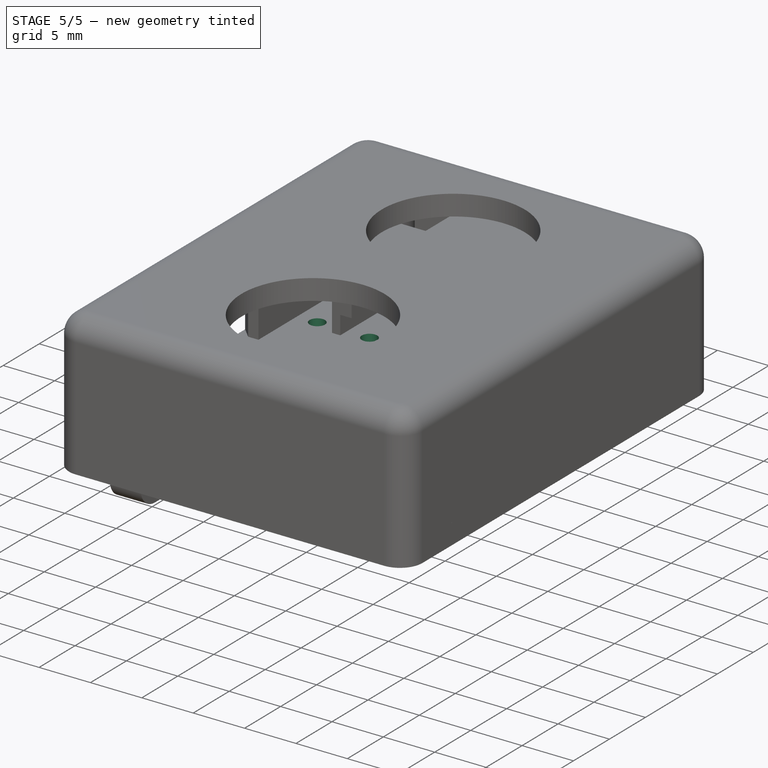
[diagram: stage 5 of 5 — iso view after this stage's code; geometry added in this stage tinted green]
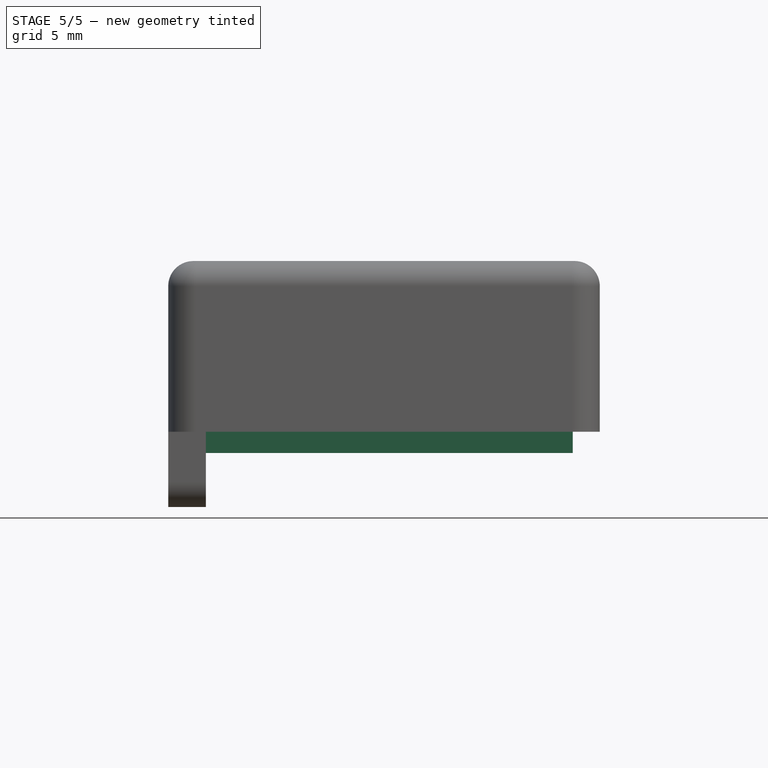
[diagram: stage 5 of 5 — front view after this stage's code; geometry added in this stage tinted green]
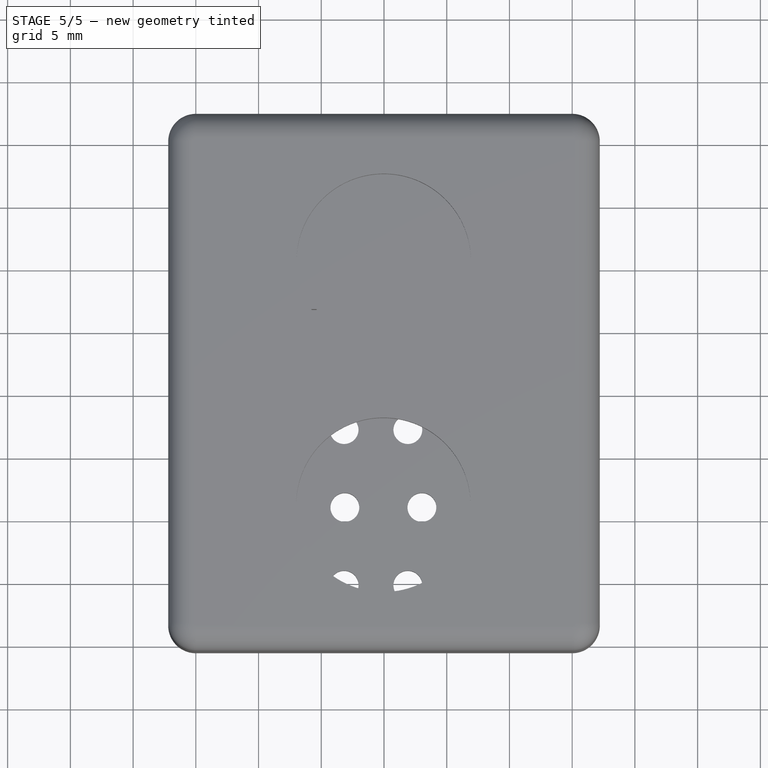
[diagram: stage 5 of 5 — top view after this stage's code; geometry added in this stage tinted green]
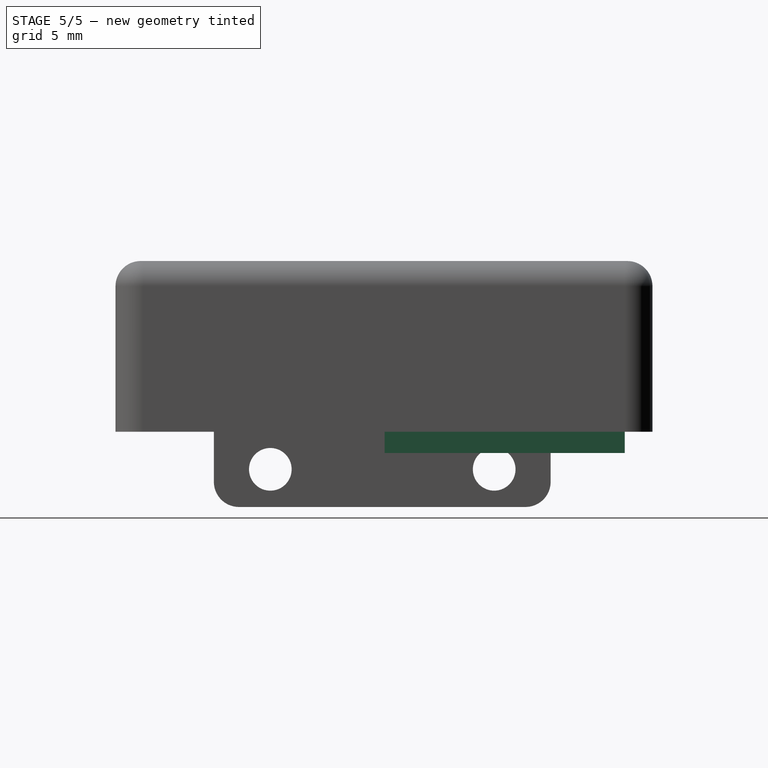
[diagram: stage 5 of 5 — right view after this stage's code; geometry added in this stage tinted green]
FEATURE [PartDesign::CoordinateSystem] Local_CS_58ce
  AttacherType = Attacher::AttachEngine3D
  MapMode = 2
FEATURE [Part::Feature] Pcb_58ce
  Placement = pos=(-33.25,57.55,0) rot=(0,0,1;0rad)
  shape: bbox 30 x 38.4 x 1.6 mm, 68 faces (baked)
FEATURE [Sketcher::SketchObject] PCB_Sketch_58ce
  ArcFitTolerance = 1e-06
  FullyConstrained = false
  MakeInternals = false
  sketch-geometry (4):
    g0: LineSegment StartX=0 StartY=0 StartZ=0 EndX=30 EndY=0 EndZ=0
    g1: LineSegment StartX=30 StartY=0 StartZ=0 EndX=30 EndY=-38.4 EndZ=0
    g2: LineSegment StartX=30 StartY=-38.4 StartZ=0 EndX=0 EndY=-38.4 EndZ=0
    g3: LineSegment StartX=0 StartY=-38.4 StartZ=0 EndX=0 EndY=0 EndZ=0
  constraints (4):
    c: Coincident(g2,g3)
    c: Coincident(g0,g3)
    c: Coincident(g1,g2)
    c: Coincident(g0,g1)
FEATURE [App::Part] Board_Geoms_58ce
  Group = -> [Pcb_58ce,PCB_Sketch_58ce]
  Origin = -> Origin
FEATURE [Part::Feature] Shape  label="D2_SOD-123_L2.8-W1.8-LS3.7-RD-1_65e9c8e63591"
  Placement = pos=(28.4,-15.95,0) rot=(0,0,-1;1.5708rad)
  shape: bbox 1.65 x 3.682 x 1.2 mm, 133 faces (baked)
FEATURE [App::Link] D2_SOD_123_L2_8_W1_8_LS3_7_RD_1_65e9c8e63591_ln_  label="D8_SOD-123_L2.8-W1.8-LS3.7-RD-1_47f20141e7fa"
  LinkPlacement = pos=(28.4,-23.3,0) rot=(0,0,-1;1.5708rad)
  LinkedObject = -> Shape
  Placement = pos=(28.4,-23.3,0) rot=(0,0,-1;1.5708rad)
FEATURE [App::Link] D2_SOD_123_L2_8_W1_8_LS3_7_RD_1_65e9c8e63591_ln_001  label="D4_SOD-123_L2.8-W1.8-LS3.7-RD-1_6889f07eb4bf"
  LinkPlacement = pos=(25.35,-15.95,0) rot=(0,0,-1;1.5708rad)
  LinkedObject = -> Shape
  Placement = pos=(25.35,-15.95,0) rot=(0,0,-1;1.5708rad)
FEATURE [App::Link] D2_SOD_123_L2_8_W1_8_LS3_7_RD_1_65e9c8e63591_ln_002  label="D7_SOD-123_L2.8-W1.8-LS3.7-RD-1_591921cb056a"
  LinkPlacement = pos=(8.6,-35.3,0) rot=(0,0,-1;1.5708rad)
  LinkedObject = -> Shape
  Placement = pos=(8.6,-35.3,0) rot=(0,0,-1;1.5708rad)
FEATURE [App::Link] D2_SOD_123_L2_8_W1_8_LS3_7_RD_1_65e9c8e63591_ln_003  label="D1_SOD-123_L2.8-W1.8-LS3.7-RD-1_0bdf45eb9d14"
  LinkPlacement = pos=(8.6,-3.4,0) rot=(0,0,-1;1.5708rad)
  LinkedObject = -> Shape
  Placement = pos=(8.6,-3.4,0) rot=(0,0,-1;1.5708rad)
FEATURE [App::Link] D2_SOD_123_L2_8_W1_8_LS3_7_RD_1_65e9c8e63591_ln_004  label="D6_SOD-123_L2.8-W1.8-LS3.7-RD-1_82361c7c6e25"
  LinkPlacement = pos=(25.4,-23.3,0) rot=(0,0,-1;1.5708rad)
  LinkedObject = -> Shape
  Placement = pos=(25.4,-23.3,0) rot=(0,0,-1;1.5708rad)
FEATURE [Part::Feature] Part__Feature  label="FPC-SMD_P0.50-WS-6P"
  shape: bbox 0.2 x 4.857 x 1.76 mm, 23 faces (baked)
FEATURE [Part::Feature] Part__Feature001  label="FPC-SMD_P0.50-WS-6P001"
  shape: bbox 0.2 x 4.857 x 1.76 mm, 23 faces (baked)
FEATURE [Part::Feature] Part__Feature002  label="FPC-SMD_P0.50-WS-6P002"
  shape: bbox 0.2 x 4.857 x 1.76 mm, 23 faces (baked)
FEATURE [Part::Feature] Part__Feature003  label="FPC-SMD_P0.50-WS-6P003"
  shape: bbox 0.2 x 4.857 x 1.76 mm, 23 faces (baked)
FEATURE [Part::Feature] Part__Feature004  label="FPC-SMD_P0.50-WS-6P004"
  shape: bbox 0.2 x 4.857 x 1.76 mm, 23 faces (baked)
FEATURE [Part::Feature] Part__Feature005  label="FPC-SMD_P0.50-WS-6P005"
  shape: bbox 6.6 x 2.34 x 1.797 mm, 63 faces (baked)
FEATURE [Part::Feature] Part__Feature006  label="FPC-SMD_P0.50-WS-6P006"
  shape: bbox 0.2 x 4.857 x 1.76 mm, 23 faces (baked)
FEATURE [Part::Feature] Part__Feature007  label="FPC-SMD_P0.50-WS-6P007"
  shape: bbox 7.201 x 4.631 x 2.001 mm, 196 faces (baked)
FEATURE [Part::Feature] Part__Feature008  label="FPC-SMD_P0.50-WS-6P008"
  shape: bbox 0.1074 x 0.2041 x 0.001 mm, 8 faces (baked)
FEATURE [Part::Feature] Part__Feature009  label="FPC-SMD_P0.50-WS-6P009"
  shape: bbox 0.1532 x 0.2106 x 0.001 mm, 16 faces (baked)
FEATURE [Part::Feature] Part__Feature010  label="FPC-SMD_P0.50-WS-6P010"
  shape: bbox 0.1095 x 0.2041 x 0.001 mm, 14 faces (baked)
FEATURE [Part::Feature] Part__Feature011  label="FPC-SMD_P0.50-WS-6P011"
  shape: bbox 0.1665 x 0.204 x 0.001 mm, 16 faces (baked)
FEATURE [Part::Feature] Part__Feature012  label="FPC-SMD_P0.50-WS-6P012"
  shape: bbox 0.183 x 0.2041 x 0.001 mm, 16 faces (baked)
FEATURE [Part::Feature] Part__Feature013  label="FPC-SMD_P0.50-WS-6P013"
  shape: bbox 0.1095 x 0.2041 x 0.001 mm, 14 faces (baked)
FEATURE [Part::Feature] Part__Feature014  label="FPC-SMD_P0.50-WS-6P014"
  shape: bbox 0.1175 x 0.1522 x 0.001 mm, 24 faces (baked)
FEATURE [Part::Feature] Part__Feature015  label="FPC-SMD_P0.50-WS-6P015"
  shape: bbox 0.09841 x 0.1521 x 0.001 mm, 23 faces (baked)
FEATURE [Part::Feature] Part__Feature016  label="FPC-SMD_P0.50-WS-6P016"
  shape: bbox 0.1394 x 0.214 x 0.001 mm, 17 faces (baked)
FEATURE [Part::Feature] Part__Feature017  label="FPC-SMD_P0.50-WS-6P017"
  shape: bbox 0.1095 x 0.2041 x 0.001 mm, 14 faces (baked)
FEATURE [Part::Feature] Part__Feature018  label="FPC-SMD_P0.50-WS-6P018"
  shape: bbox 0.1665 x 0.204 x 0.001 mm, 16 faces (baked)
FEATURE [Part::Feature] Part__Feature019  label="FPC-SMD_P0.50-WS-6P019"
  shape: bbox 0.183 x 0.2041 x 0.001 mm, 16 faces (baked)
FEATURE [Part::Feature] Part__Feature020  label="FPC-SMD_P0.50-WS-6P020"
  shape: bbox 0.9227 x 0.6764 x 0.001 mm, 37 faces (baked)
FEATURE [App::Part] FPC_SMD_P0_50_WS_6P  label="FPC1_FPC-SMD_P0.50-WS-6P021_3e5dd22e69e5"
  Group = -> [Part__Feature,Part__Feature001,Part__Feature002,Part__Feature003,Part__Feature004,Part__Feature005,Part__Feature006,Part__Feature007,Part__Feature008,Part__Feature009,Part__Feature010,Part__Feature011,Part__Feature012,Part__Feature013,Part__Feature014,Part__Feature015,Part__Feature016,Part__Feature017,Part__Feature018,Part__Feature019,Part__Feature020]
  Origin = -> Origin008
  Placement = pos=(3.16,-19.35,0) rot=(0,0,-1;1.5708rad)
FEATURE [App::Link] D2_SOD_123_L2_8_W1_8_LS3_7_RD_1_65e9c8e63591_ln_005  label="D5_SOD-123_L2.8-W1.8-LS3.7-RD-1_7e1dcfd87c58"
  LinkPlacement = pos=(8.6,-23.3,0) rot=(0,0,-1;1.5708rad)
  LinkedObject = -> Shape
  Placement = pos=(8.6,-23.3,0) rot=(0,0,-1;1.5708rad)
FEATURE [App::Link] D2_SOD_123_L2_8_W1_8_LS3_7_RD_1_65e9c8e63591_ln_006  label="D3_SOD-123_L2.8-W1.8-LS3.7-RD-1_b02fcd7d72b9"
  LinkPlacement = pos=(8.6,-15.4,0) rot=(0,0,-1;1.5708rad)
  LinkedObject = -> Shape
  Placement = pos=(8.6,-15.4,0) rot=(0,0,-1;1.5708rad)
FEATURE [Part::Feature] Part__Feature021  label="D2FC_F_7N_60M_BASE"
  shape: bbox 12.8 x 10 x 5.8 mm, 71 faces (baked)
FEATURE [Part::Feature] Part__Feature022  label="D2FC_F_7N_60M_BUTTON"
  Placement = pos=(-5.2,5.4,2.9) rot=(0,0,1;0rad)
  shape: bbox 1.2 x 2 x 2.9 mm, 6 faces (baked)
FEATURE [App::Part] D2FC_F_7N_60M  label="SW2_D2FC_F_7N_60M_8f2af3d61e4a"
  Group = -> [Part__Feature021,Part__Feature022]
  Origin = -> Origin009
  Placement = pos=(3.55,-31.9,1.49) rot=(0,0.707107,0.707107;3.14159rad)
FEATURE [App::Link] SW2_D2FC_F_7N_60M_8f2af3d61e4a_ln_  label="SW2_D2FC_F_7N_60M_8f2af3d61e4a[2]"
  LinkPlacement = pos=(20.15,-32.3,1.49) rot=(1,0,0;1.5708rad)
  LinkedObject = -> D2FC_F_7N_60M
  Placement = pos=(20.15,-32.3,1.49) rot=(1,0,0;1.5708rad)
FEATURE [App::Link] SW2_D2FC_F_7N_60M_8f2af3d61e4a_ln_001  label="SW2_D2FC_F_7N_60M_8f2af3d61e4a[3]"
  LinkPlacement = pos=(26.35,-26.1,1.49) rot=(1,0,0;1.5708rad)
  LinkedObject = -> D2FC_F_7N_60M
  Placement = pos=(26.35,-26.1,1.49) rot=(1,0,0;1.5708rad)
FEATURE [App::Link] SW2_D2FC_F_7N_60M_8f2af3d61e4a_ln_002  label="SW2_D2FC_F_7N_60M_8f2af3d61e4a[4]"
  LinkPlacement = pos=(20.15,-19.9,1.49) rot=(1,0,0;1.5708rad)
  LinkedObject = -> D2FC_F_7N_60M
  Placement = pos=(20.15,-19.9,1.49) rot=(1,0,0;1.5708rad)
FEATURE [App::Link] SW2_D2FC_F_7N_60M_8f2af3d61e4a_ln_003  label="SW1_D2FC_F_7N_60M_d0ba37cb3806"
  LinkPlacement = pos=(3.58,-12.45,1.49) rot=(0,0.707107,0.707107;3.14159rad)
  LinkedObject = -> D2FC_F_7N_60M
  Placement = pos=(3.58,-12.45,1.49) rot=(0,0.707107,0.707107;3.14159rad)
FEATURE [App::Link] SW2_D2FC_F_7N_60M_8f2af3d61e4a_ln_004  label="SW1_D2FC_F_7N_60M_d0ba37cb3806[2]"
  LinkPlacement = pos=(20.18,-12.85,1.49) rot=(1,0,0;1.5708rad)
  LinkedObject = -> D2FC_F_7N_60M
  Placement = pos=(20.18,-12.85,1.49) rot=(1,0,0;1.5708rad)
FEATURE [App::Link] SW2_D2FC_F_7N_60M_8f2af3d61e4a_ln_005  label="SW1_D2FC_F_7N_60M_d0ba37cb3806[3]"
  LinkPlacement = pos=(26.38,-6.65,1.49) rot=(1,0,0;1.5708rad)
  LinkedObject = -> D2FC_F_7N_60M
  Placement = pos=(26.38,-6.65,1.49) rot=(1,0,0;1.5708rad)
FEATURE [App::Link] SW2_D2FC_F_7N_60M_8f2af3d61e4a_ln_006  label="SW1_D2FC_F_7N_60M_d0ba37cb3806[4]"
  LinkPlacement = pos=(20.18,-0.45,1.49) rot=(1,0,0;1.5708rad)
  LinkedObject = -> D2FC_F_7N_60M
  Placement = pos=(20.18,-0.45,1.49) rot=(1,0,0;1.5708rad)
FEATURE [App::Part] Top_58ce
  Group = -> [Shape,D2_SOD_123_L2_8_W1_8_LS3_7_RD_1_65e9c8e63591_ln_,D2_SOD_123_L2_8_W1_8_LS3_7_RD_1_65e9c8e63591_ln_001,D2_SOD_123_L2_8_W1_8_LS3_7_RD_1_65e9c8e63591_ln_002,D2_SOD_123_L2_8_W1_8_LS3_7_RD_1_65e9c8e63591_ln_003,D2_SOD_123_L2_8_W1_8_LS3_7_RD_1_65e9c8e63591_ln_004,FPC_SMD_P0_50_WS_6P,D2_SOD_123_L2_8_W1_8_LS3_7_RD_1_65e9c8e63591_ln_005,D2_SOD_123_L2_8_W1_8_LS3_7_RD_1_65e9c8e63591_ln_006,+8 more]
  Origin = -> Origin003
FEATURE [App::Part] Step_Models_58ce
  Group = -> [Top_58ce]
  Origin = -> Origin002
FEATURE [App::Part] Board_58ce  label="thumb-cluster"
  Group = -> [Local_CS_58ce,Board_Geoms_58ce,Step_Models_58ce]
  Origin = -> Origin001
FEATURE [PartDesign::SubShapeBinder] Binder
  BindCopyOnChange = 0
  BindMode = 0
  ClaimChildren = false
  Context = -> Part [Body.Binder.]
  Fuse = false
  MakeFace = true
  OffsetFill = false
  OffsetIntersection = false
  OffsetJoinType = 0
  OffsetOpenResult = false
  PartialLoad = false
  Refine = true
  Relative = true
  Support = -> [Board_58ce[Board_Geoms_58ce.Pcb_58ce.Face68]]
  _Version = 2
FEATURE [Sketcher::SketchObject] Sketch001
  ArcFitTolerance = 1e-06
  ExternalGeometry = -> [Binder]
  FullyConstrained = true
  MakeInternals = false
  MapMode = 5
  Placement = pos=(0,0,-3.6) rot=(1,0,0;3.14159rad)
  sketch-geometry (28):
    g0: Circle CenterX=11.82 CenterY=35.2 CenterZ=0 NormalX=0 NormalY=0 NormalZ=1 AngleXU=0 Radius=1.15
    g1: Circle CenterX=16.9 CenterY=35.2 CenterZ=0 NormalX=0 NormalY=0 NormalZ=1 AngleXU=0 Radius=1.15
    g2: Circle CenterX=21.98 CenterY=35.2 CenterZ=0 NormalX=0 NormalY=0 NormalZ=1 AngleXU=0 Radius=1.15
    g3: Circle CenterX=1.72 CenterY=29 CenterZ=0 NormalX=0 NormalY=0 NormalZ=1 AngleXU=0 Radius=1.15
    g4: Circle CenterX=6.8 CenterY=29 CenterZ=0 NormalX=0 NormalY=0 NormalZ=1 AngleXU=0 Radius=1.15
    g5: Circle CenterX=11.88 CenterY=29 CenterZ=0 NormalX=0 NormalY=0 NormalZ=1 AngleXU=0 Radius=1.15
    g6: Circle CenterX=18.02 CenterY=29 CenterZ=0 NormalX=0 NormalY=0 NormalZ=1 AngleXU=0 Radius=1.15
    g7: Circle CenterX=23.1 CenterY=29 CenterZ=0 NormalX=0 NormalY=0 NormalZ=1 AngleXU=0 Radius=1.15
    g8: Circle CenterX=28.18 CenterY=29 CenterZ=0 NormalX=0 NormalY=0 NormalZ=1 AngleXU=0 Radius=1.15
    g9: Circle CenterX=11.82 CenterY=22.8 CenterZ=0 NormalX=0 NormalY=0 NormalZ=1 AngleXU=0 Radius=1.15
    g10: Circle CenterX=16.9 CenterY=22.8 CenterZ=0 NormalX=0 NormalY=0 NormalZ=1 AngleXU=0 Radius=1.15
    g11: Circle CenterX=21.98 CenterY=22.8 CenterZ=0 NormalX=0 NormalY=0 NormalZ=1 AngleXU=0 Radius=1.15
    g12: Circle CenterX=11.85 CenterY=15.75 CenterZ=0 NormalX=0 NormalY=0 NormalZ=1 AngleXU=0 Radius=1.15
    g13: Circle CenterX=16.93 CenterY=15.75 CenterZ=0 NormalX=0 NormalY=0 NormalZ=1 AngleXU=0 Radius=1.15
    g14: Circle CenterX=22.01 CenterY=15.75 CenterZ=0 NormalX=0 NormalY=0 NormalZ=1 AngleXU=0 Radius=1.15
    g15: Circle CenterX=1.75 CenterY=9.55 CenterZ=0 NormalX=0 NormalY=0 NormalZ=1 AngleXU=0 Radius=1.15
    g16: Circle CenterX=6.83 CenterY=9.55 CenterZ=0 NormalX=0 NormalY=0 NormalZ=1 AngleXU=0 Radius=1.15
    g17: Circle CenterX=11.91 CenterY=9.55 CenterZ=0 NormalX=0 NormalY=0 NormalZ=1 AngleXU=0 Radius=1.15
    g18: Circle CenterX=18.05 CenterY=9.55 CenterZ=0 NormalX=0 NormalY=0 NormalZ=1 AngleXU=0 Radius=1.15
    g19: Circle CenterX=23.13 CenterY=9.55 CenterZ=0 NormalX=0 NormalY=0 NormalZ=1 AngleXU=0 Radius=1.15
    g20: Circle CenterX=28.21 CenterY=9.55 CenterZ=0 NormalX=0 NormalY=0 NormalZ=1 AngleXU=0 Radius=1.15
    g21: Circle CenterX=22.01 CenterY=3.35 CenterZ=0 NormalX=0 NormalY=0 NormalZ=1 AngleXU=0 Radius=1.15
    g22: Circle CenterX=16.93 CenterY=3.35 CenterZ=0 NormalX=0 NormalY=0 NormalZ=1 AngleXU=0 Radius=1.15
    g23: Circle CenterX=11.85 CenterY=3.35 CenterZ=0 NormalX=0 NormalY=0 NormalZ=1 AngleXU=0 Radius=1.15
    g24: Circle CenterX=3 CenterY=35.3667 CenterZ=0 NormalX=0 NormalY=0 NormalZ=1 AngleXU=0 Radius=1.25
    g25: Circle CenterX=27 CenterY=35.3667 CenterZ=0 NormalX=0 NormalY=0 NormalZ=1 AngleXU=0 Radius=1.25
    g26: Circle CenterX=27 CenterY=3.01673 CenterZ=0 NormalX=0 NormalY=0 NormalZ=1 AngleXU=0 Radius=1.25
    g27: Circle CenterX=2.98327 CenterY=3.01673 CenterZ=0 NormalX=0 NormalY=0 NormalZ=1 AngleXU=0 Radius=1.25
  constraints (56):
    c: Coincident(g0,g-3)
    c: Coincident(g1,g-4)
    c: Coincident(g2,g-5)
    c: Coincident(g3,g-11)
    c: Coincident(g4,g-10)
    c: Coincident(g5,g-9)
    c: Coincident(g6,g-8)
    c: Coincident(g7,g-7)
    c: Coincident(g8,g-6)
    c: Coincident(g9,g-14)
    c: Coincident(g10,g-13)
    c: Coincident(g11,g-12)
    c: Coincident(g12,g-17)
    c: Coincident(g13,g-16)
    c: Coincident(g14,g-15)
    c: Coincident(g15,g-18)
    c: Coincident(g16,g-19)
    c: Coincident(g17,g-20)
    c: Coincident(g18,g-21)
    c: Coincident(g19,g-22)
    c: Coincident(g20,g-23)
    c: Coincident(g21,g-24)
    c: Coincident(g22,g-25)
    c: Coincident(g23,g-26)
    c: Coincident(g24,g-27)
    c: Coincident(g25,g-28)
    c: Coincident(g26,g-29)
    c: Coincident(g27,g-30)
    c: Diameter(g24) = 2.5
    c: Equal(g24,g25)
    c: Equal(g25,g26)
    c: Equal(g26,g27)
    c: Diameter(g0) = 2.3
    c: Equal(g0,g1)
    c: Equal(g1,g2)
    c: Equal(g2,g8)
    c: Equal(g8,g7)
    c: Equal(g7,g6)
    c: Equal(g6,g5)
    c: Equal(g5,g4)
    c: Equal(g4,g3)
    c: Equal(g3,g9)
    c: Equal(g9,g10)
    c: Equal(g10,g11)
    c: Equal(g0,g12)
    c: Equal(g12,g13)
    c: Equal(g13,g14)
    c: Equal(g14,g20)
    c: Equal(g20,g19)
    c: Equal(g19,g18)
    c: Equal(g18,g17)
    c: Equal(g17,g16)
    c: Equal(g16,g15)
    c: Equal(g15,g23)
    c: Equal(g23,g22)
    c: Equal(g22,g21)
FEATURE [App::Link] Link  label="stick-recess"
  LinkPlacement = pos=(14.98,-9.55,7.5) rot=(0,0,1;0rad)
  LinkedObject = -> <external caps.FCStd>#Body002
  Placement = pos=(14.98,-9.55,7.5) rot=(0,0,1;0rad)
  expr: .Placement.Base.z = <<vars>>#VarSet.Base_cap_height
FEATURE [App::Link] Link001  label="stick-recess001"
  LinkPlacement = pos=(14.95,-29,7.5) rot=(0,0,1;0rad)
  LinkedObject = -> <external caps.FCStd>#Body002
  Placement = pos=(14.95,-29,7.5) rot=(0,0,1;0rad)
  expr: .Placement.Base.z = <<vars>>#VarSet.Base_cap_height
FEATURE [PartDesign::ShapeBinder] CopyPcb_58ce
  Placement = pos=(-33.25,57.55,0) rot=(0,0,1;0rad)
  TraceSupport = false
FEATURE [Sketcher::SketchObject] Sketch006
  ArcFitTolerance = 1e-06
  AttachmentSupport = -> [CopyPcb_58ce]
  ExternalGeometry = -> [CopyPcb_58ce]
  FullyConstrained = false
  MakeInternals = false
  MapMode = 5
  Placement = pos=(-33.25,57.55,0) rot=(0,0,1;0rad)
  sketch-geometry (17):
    g0: LineSegment StartX=33.2429 StartY=-57.554 StartZ=0 EndX=33.2429 EndY=-76.7 EndZ=0
    g1: LineSegment StartX=33.2429 StartY=-76.7 StartZ=0 EndX=63.3009 EndY=-76.7 EndZ=0
    g2: LineSegment StartX=63.3009 StartY=-76.7 StartZ=0 EndX=63.3009 EndY=-57.554 EndZ=0
    g3: LineSegment StartX=63.3009 StartY=-57.554 StartZ=0 EndX=33.2429 EndY=-57.554 EndZ=0
    g4: Circle CenterX=45.1 CenterY=-60.954 CenterZ=0 NormalX=0 NormalY=0 NormalZ=1 AngleXU=0 Radius=0.75
    g5: Circle CenterX=50.18 CenterY=-60.9 CenterZ=0 NormalX=0 NormalY=0 NormalZ=1 AngleXU=0 Radius=0.75
    g6: Circle CenterX=55.26 CenterY=-60.9 CenterZ=0 NormalX=0 NormalY=0 NormalZ=1 AngleXU=0 Radius=0.75
    g7: Circle CenterX=56.38 CenterY=-67.1 CenterZ=0 NormalX=0 NormalY=0 NormalZ=1 AngleXU=0 Radius=0.75
    g8: Circle CenterX=61.46 CenterY=-67.1 CenterZ=0 NormalX=0 NormalY=0 NormalZ=1 AngleXU=0 Radius=0.75
    g9: Circle CenterX=51.3 CenterY=-67.1 CenterZ=0 NormalX=0 NormalY=0 NormalZ=1 AngleXU=0 Radius=0.75
    g10: Circle CenterX=48.23 CenterY=-67.1 CenterZ=0 NormalX=0 NormalY=0 NormalZ=1 AngleXU=0 Radius=1.5
    g11: Circle CenterX=45.16 CenterY=-67.1 CenterZ=0 NormalX=0 NormalY=0 NormalZ=1 AngleXU=0 Radius=0.75
    g12: Circle CenterX=40.08 CenterY=-67.1 CenterZ=0 NormalX=0 NormalY=0 NormalZ=1 AngleXU=0 Radius=0.75
    g13: Circle CenterX=35 CenterY=-67.1 CenterZ=0 NormalX=0 NormalY=0 NormalZ=1 AngleXU=0 Radius=0.75
    g14: Circle CenterX=45.1 CenterY=-73.3 CenterZ=0 NormalX=0 NormalY=0 NormalZ=1 AngleXU=0 Radius=0.75
    g15: Circle CenterX=50.18 CenterY=-73.3 CenterZ=0 NormalX=0 NormalY=0 NormalZ=1 AngleXU=0 Radius=0.75
    g16: Circle CenterX=55.26 CenterY=-73.3 CenterZ=0 NormalX=0 NormalY=0 NormalZ=1 AngleXU=0 Radius=0.75
  constraints (35):
    c: Coincident(g0,g1)
    c: Coincident(g1,g2)
    c: Coincident(g2,g3)
    c: Coincident(g3,g0)
    c: Vertical(g0)
    c: Vertical(g2)
    c: Horizontal(g1)
    c: Horizontal(g3)
    c: Diameter(g4) = 1.5
    c: Coincident(g5,g-11)
    c: Coincident(g6,g-10)
    c: Coincident(g7,g-8)
    c: Coincident(g8,g-9)
    c: Coincident(g9,g-7)
    c: Coincident(g10,g-6)
    c: Equal(g10,g-6)
    c: Coincident(g11,g-5)
    c: Coincident(g12,g-4)
    c: Coincident(g13,g-3)
    c: Coincident(g14,g-13)
    c: Coincident(g15,g-14)
    c: Coincident(g16,g-15)
    c: Equal(g4,g5)
    c: Equal(g5,g6)
    c: Equal(g6,g8)
    c: Equal(g8,g7)
    c: Equal(g7,g9)
    c: Equal(g9,g11)
    c: Equal(g11,g12)
    c: Equal(g12,g13)
    c: Equal(g13,g14)
    c: Equal(g14,g15)
    c: Equal(g15,g16)
    c: Distance(g4,g3) = 3.4
    c: Distance(g14,g1) = 3.4
FEATURE [PartDesign::Pad] Pad003
  Direction = (0,0,1)
  Length = 3.7
  Length2 = 10
  Placement = pos=(-33.25,57.55,0) rot=(0,0,1;0rad)
  Profile = -> Sketch006
  ReferenceAxis = -> Sketch006 [N_Axis]
  Refine = true
  Reversed = true
  Suppressed = false
  Type = 0
FEATURE [Sketcher::SketchObject] Sketch007
  ArcFitTolerance = 1e-06
  AttachmentSupport = -> [CopyPcb_58ce]
  ExternalGeometry = -> [CopyPcb_58ce,Pad003]
  FullyConstrained = false
  MakeInternals = false
  MapMode = 5
  Placement = pos=(-33.25,57.55,0) rot=(0,0,1;0rad)
  sketch-geometry (4):
    g0: Circle CenterX=36.2333 CenterY=-60.5667 CenterZ=0 NormalX=0 NormalY=0 NormalZ=1 AngleXU=0 Radius=1.5
    g1: Circle CenterX=60.25 CenterY=-73.7 CenterZ=0 NormalX=0 NormalY=0 NormalZ=1 AngleXU=0 Radius=1.5
    g2: Circle CenterX=36.2333 CenterY=-73.7 CenterZ=0 NormalX=0 NormalY=0 NormalZ=1 AngleXU=0 Radius=1.5
    g3: Circle CenterX=60.25 CenterY=-60.5667 CenterZ=0 NormalX=0 NormalY=0 NormalZ=1 AngleXU=0 Radius=1.5
  constraints (8):
    c: Diameter(g0) = 3
    c: Equal(g1,g2)
    c: Vertical(g0,g2)
    c: Coincident(g3,g-4)
    c: Equal(g3,g0)
    c: Vertical(g1,g3)
    c: Distance(g2,g-5) = 3
    c: Distance(g1,g-5) = 3
FEATURE [PartDesign::Pocket] Pocket003
  BaseFeature = -> Pad003
  Direction = (0,0,-1)
  Length = 2.5
  Length2 = 5
  Placement = pos=(-33.25,57.55,0) rot=(0,0,1;0rad)
  Profile = -> Sketch007
  ReferenceAxis = -> Sketch007 [N_Axis]
  Refine = true
  Suppressed = false
  Type = 0
FEATURE [Sketcher::SketchObject] Sketch019
  ArcFitTolerance = 1e-06
  AttachmentSupport = -> [Pocket006]
  ExternalGeometry = -> [Binder002]
  FullyConstrained = true
  MakeInternals = false
  MapMode = 5
  Placement = pos=(0,0,7.89) rot=(1,0,0;3.14159rad)
  sketch-geometry (1):
    g0: Circle CenterX=14.98 CenterY=9.55 CenterZ=0 NormalX=0 NormalY=0 NormalZ=1 AngleXU=0 Radius=1.4
  constraints (2):
    c: Coincident(g0,g-3)
    c: Distance(g0,g-3) = 0.1
FEATURE [PartDesign::Pad] Pad007
  BaseFeature = -> Pocket006
  Direction = (0,0,-1)
  Length = 10
  Length2 = 10
  Profile = -> Sketch019
  ReferenceAxis = -> Sketch019 [N_Axis]
  Refine = true
  Suppressed = false
  Type = 0
FEATURE [Sketcher::SketchObject] Sketch020
  ArcFitTolerance = 1e-06
  AttachmentSupport = -> [Pad007]
  ExternalGeometry = -> [Pad007]
  FullyConstrained = true
  MakeInternals = false
  MapMode = 5
  Placement = pos=(0,0,-2.11) rot=(1,0,0;3.14159rad)
  sketch-geometry (4):
    g0: ArcOfCircle CenterX=14.98 CenterY=9.55 CenterZ=0 NormalX=0 NormalY=0 NormalZ=1 AngleXU=0 Radius=1.4 StartAngle=2.77639 EndAngle=3.5068
    g1: LineSegment StartX=13.6723 StartY=10.05 StartZ=0 EndX=16.2877 EndY=10.05 EndZ=0
    g2: LineSegment StartX=16.2877 StartY=9.05 StartZ=0 EndX=13.6723 EndY=9.05 EndZ=0
    g3: ArcOfCircle CenterX=14.98 CenterY=9.55 CenterZ=0 NormalX=0 NormalY=0 NormalZ=1 AngleXU=0 Radius=1.4 StartAngle=5.91798 EndAngle=6.64839
  constraints (13):
    c: Coincident(g0,g-3)
    c: Equal(g0,g-3)
    c: Horizontal(g1)
    c: PointOnObject(g2,g3)
    c: Horizontal(g2)
    c: Distance(g0,g1) = 0.5
    c: Distance(g0,g2) = 0.5
    c: Coincident(g3,g1)
    c: Coincident(g0,g1)
    c: Equal(g0,g3)
    c: Coincident(g0,g2)
    c: PointOnObject(g3,g2)
    c: Coincident(g0,g3)
FEATURE [PartDesign::Pad] Pad008
  BaseFeature = -> Pad007
  Direction = (0,0,-1)
  Length = 1
  Length2 = 10
  Profile = -> Sketch020
  ReferenceAxis = -> Sketch020 [N_Axis]
  Refine = true
  Suppressed = false
  Type = 0
FEATURE [Sketcher::SketchObject] Sketch021
  ArcFitTolerance = 1e-06
  AttachmentSupport = -> [Pad008]
  ExternalGeometry = -> [Binder002]
  FullyConstrained = true
  MakeInternals = false
  MapMode = 5
  Placement = pos=(0,0,7.89) rot=(1,0,0;3.14159rad)
  sketch-geometry (4):
    g0: LineSegment StartX=13.33 StartY=6.35 StartZ=0 EndX=16.63 EndY=6.35 EndZ=0
    g1: LineSegment StartX=16.63 StartY=6.35 StartZ=0 EndX=16.63 EndY=12.75 EndZ=0
    g2: LineSegment StartX=16.63 StartY=12.75 StartZ=0 EndX=13.33 EndY=12.75 EndZ=0
    g3: LineSegment StartX=13.33 StartY=12.75 StartZ=0 EndX=13.33 EndY=6.35 EndZ=0
  constraints (12):
    c: Coincident(g0,g1)
    c: Coincident(g1,g2)
    c: Coincident(g2,g3)
    c: Coincident(g3,g0)
    c: Horizontal(g0)
    c: Horizontal(g2)
    c: Vertical(g1)
    c: Vertical(g3)
    c: Distance(g-3,g2) = 0.1
    c: Distance(g-4,g0) = 0.1
    c: Distance(g-5,g1) = 0.1
    c: Distance(g-6,g3) = 0.1
FEATURE [PartDesign::SubShapeBinder] Binder003
  BindCopyOnChange = 0
  BindMode = 0
  ClaimChildren = false
  Context = -> Body003 [Binder003.]
  Fuse = false
  MakeFace = true
  OffsetFill = false
  OffsetIntersection = false
  OffsetJoinType = 0
  OffsetOpenResult = false
  PartialLoad = false
  Refine = true
  Relative = true
  Support = -> [Board_58ce[Board_Geoms_58ce.Pcb_58ce.Face67]]
  _Version = 2
FEATURE [PartDesign::Pad] Pad009
  BaseFeature = -> Pad008
  Direction = (0,0,-1)
  Length = 10
  Length2 = 10
  Profile = -> Sketch021
  ReferenceAxis = -> Sketch021 [N_Axis]
  Refine = true
  Suppressed = false
  Type = 3
  UpToFace = -> Binder003 [Face1]
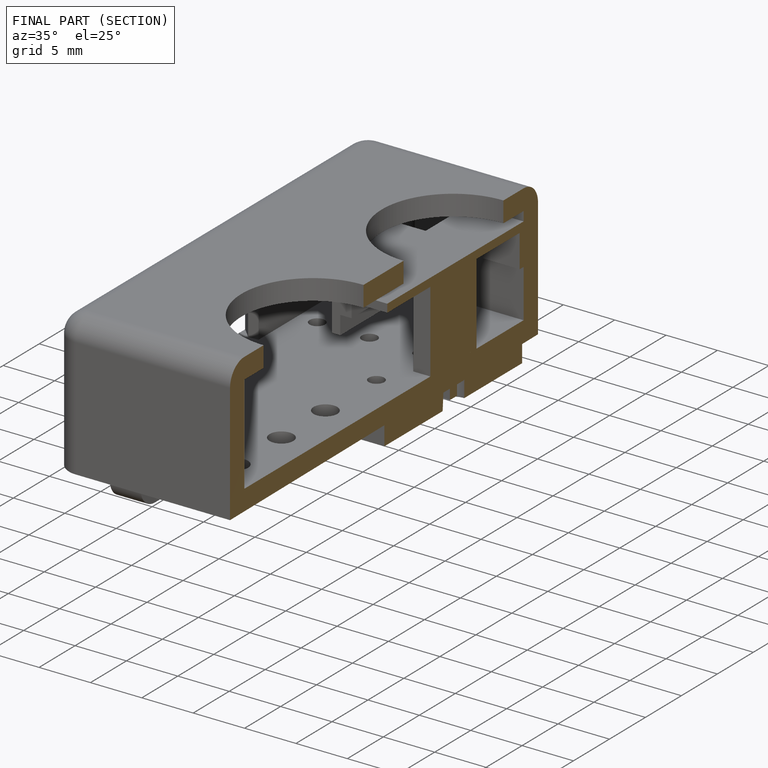
[diagram: finished part — half-section view (interior)]
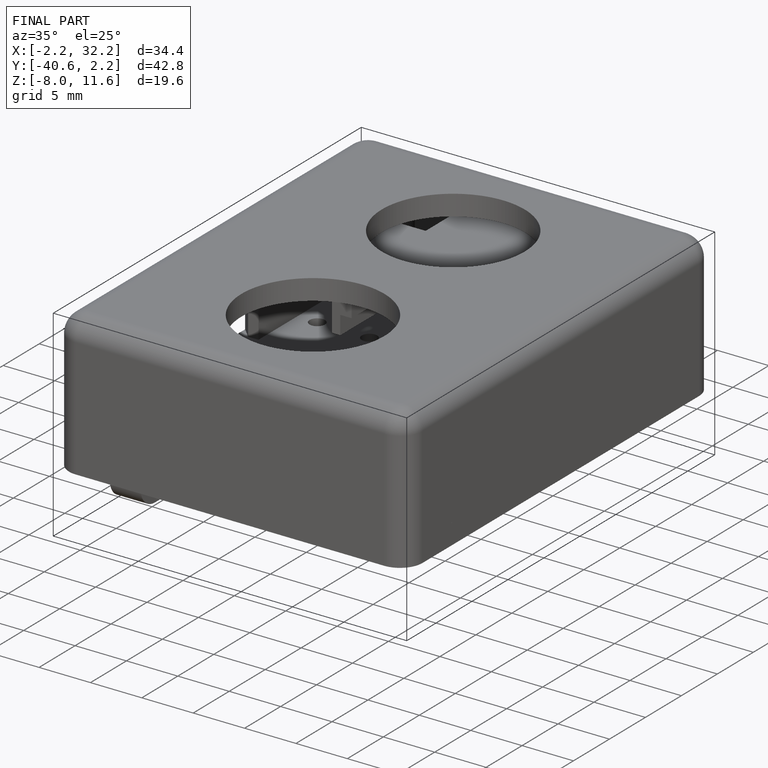
[diagram: finished part — iso view with bounding-box wireframe]
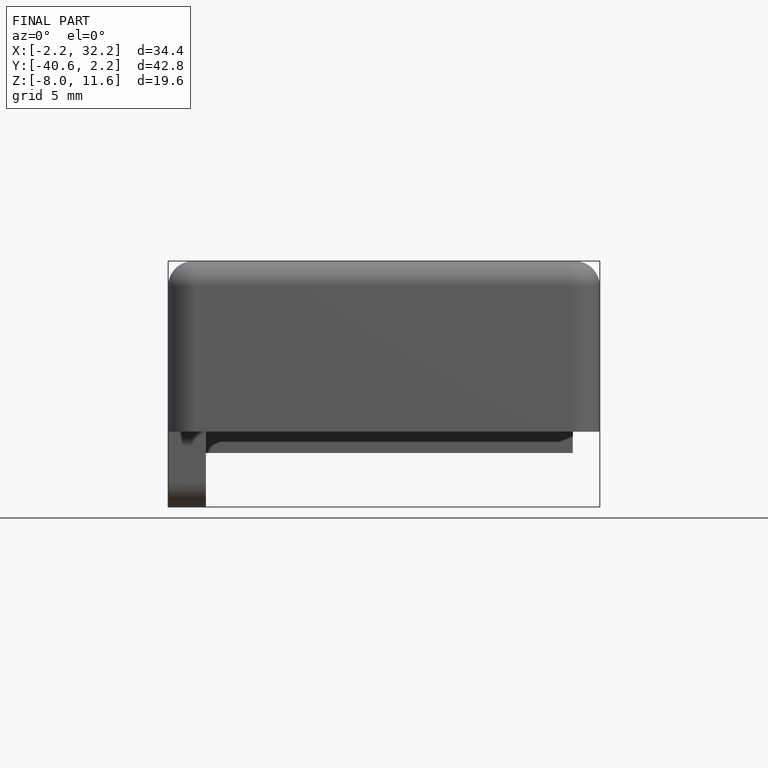
[diagram: finished part — front view with bounding-box wireframe]
